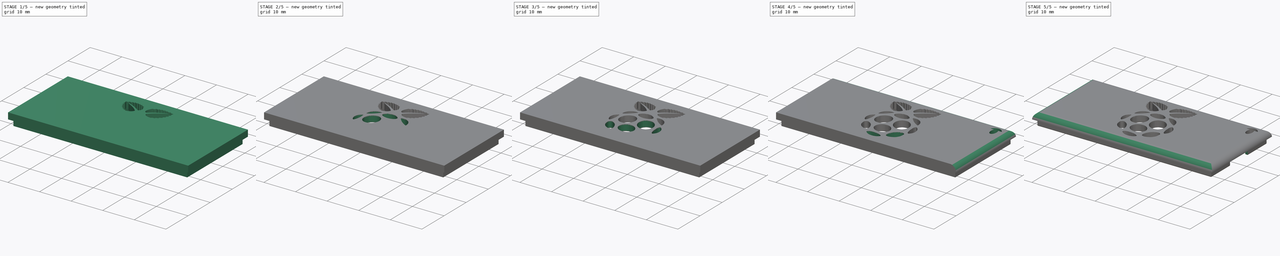
[diagram: build sequence overview — one tinted view per stage of 5, left to right]
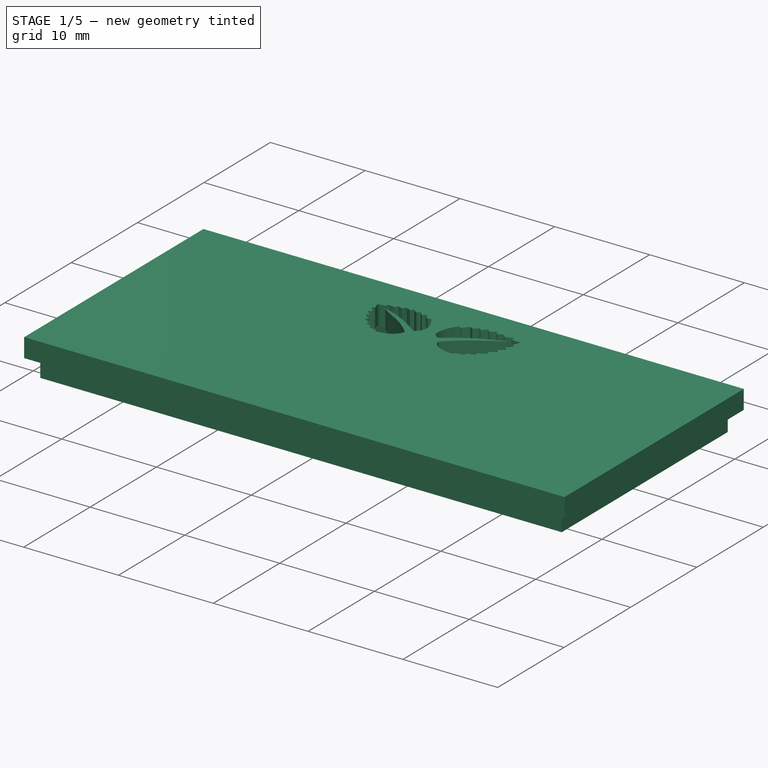
[diagram: stage 1 of 5 — iso view after this stage's code; geometry added in this stage tinted green]
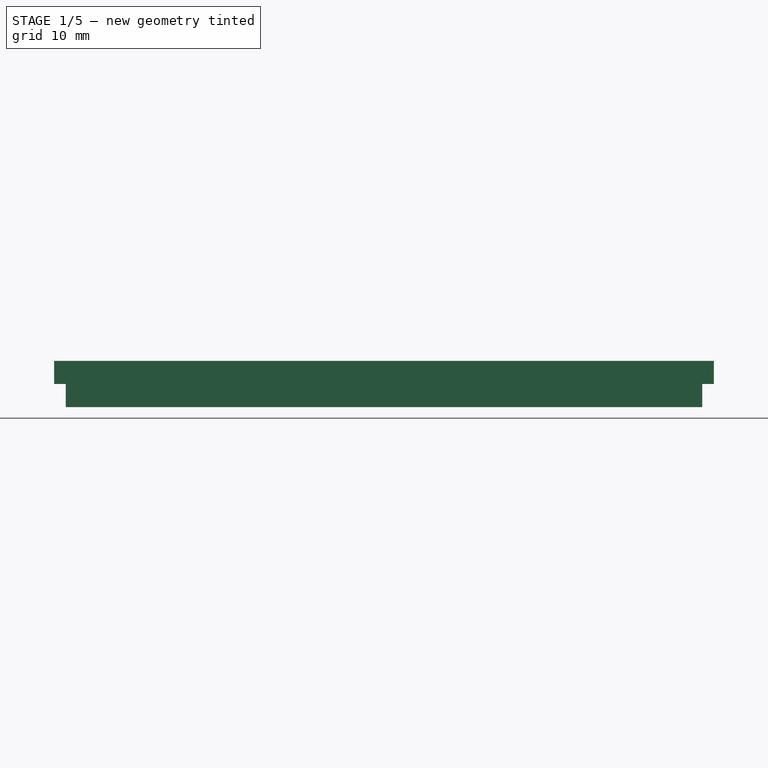
[diagram: stage 1 of 5 — front view after this stage's code; geometry added in this stage tinted green]
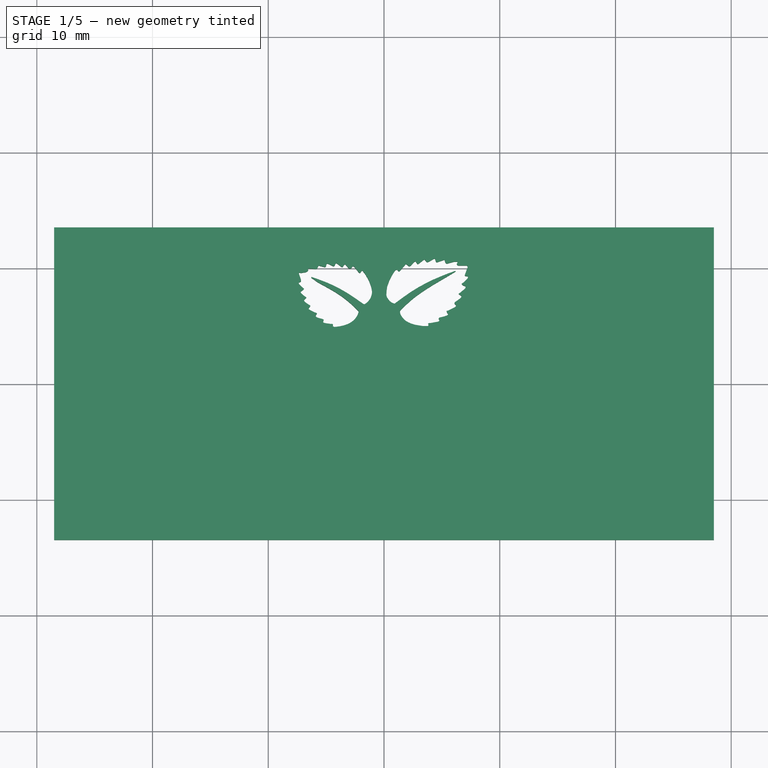
[diagram: stage 1 of 5 — top view after this stage's code; geometry added in this stage tinted green]
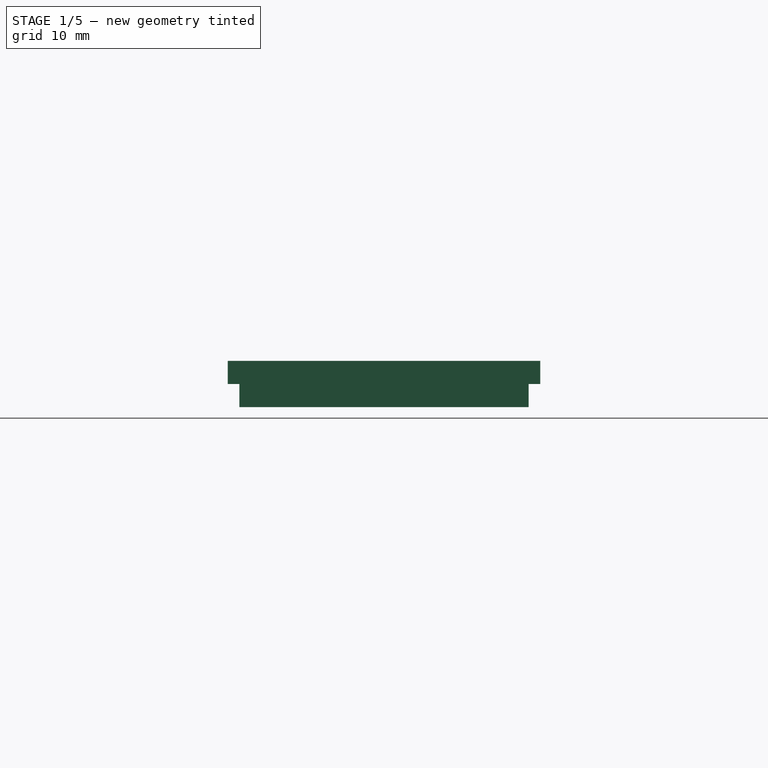
[diagram: stage 1 of 5 — right view after this stage's code; geometry added in this stage tinted green]
FCSTD DOCUMENT  (FreeCAD 0.20R29603 (Git))
Label: picoBracketLid
License: All rights reserved
LicenseURL: http://en.wikipedia.org/wiki/All_rights_reserved
objects: Sketcher::SketchObject×21, PartDesign::Pocket×19, PartDesign::Pad×2, PartDesign::Fillet×1, PartDesign::Body×1
note: 66 computed .brp shape members not serialized (recipe doc carries the construction recipe); baked Part::Feature solids carry a one-line shape summary decoded from their .brp

FEATURE [Sketcher::SketchObject] Sketch
  FullyConstrained = true
  MapMode = 5
  Support = -> [XY_Plane]
  sketch-geometry (4):
    g0: LineSegment StartX=-28.5 StartY=13.5 StartZ=0 EndX=28.5 EndY=13.5 EndZ=0
    g1: LineSegment StartX=28.5 StartY=13.5 StartZ=0 EndX=28.5 EndY=-13.5 EndZ=0
    g2: LineSegment StartX=28.5 StartY=-13.5 StartZ=0 EndX=-28.5 EndY=-13.5 EndZ=0
    g3: LineSegment StartX=-28.5 StartY=-13.5 StartZ=0 EndX=-28.5 EndY=13.5 EndZ=0
  constraints (12):
    c: Coincident(g0,g1)
    c: Coincident(g1,g2)
    c: Coincident(g2,g3)
    c: Coincident(g3,g0)
    c: Horizontal(g0)
    c: Horizontal(g2)
    c: Vertical(g1)
    c: Vertical(g3)
    c: DistanceX(g0,g0) = 57
    c: DistanceY(g1,g1) = 27
    c: DistanceX(g-1,g0) = 28.5
    c: DistanceY(g1,g-1) = 13.5
FEATURE [PartDesign::Pad] Pad
  Direction = (0,0,1)
  Length = 2
  Length2 = 10
  Profile = -> Sketch
  ReferenceAxis = -> Sketch [N_Axis]
  Type = 0
FEATURE [Sketcher::SketchObject] Sketch001
  ExternalGeometry = -> [Pad]
  FullyConstrained = true
  MapMode = 5
  Placement = pos=(0,0,0) rot=(1,0,0;3.14159rad)
  Support = -> [Pad]
  sketch-geometry (8):
    g0: LineSegment StartX=-27.5 StartY=12.5 StartZ=0 EndX=27.5 EndY=12.5 EndZ=0
    g1: LineSegment StartX=27.5 StartY=12.5 StartZ=0 EndX=27.5 EndY=-12.5 EndZ=0
    g2: LineSegment StartX=27.5 StartY=-12.5 StartZ=0 EndX=-27.5 EndY=-12.5 EndZ=0
    g3: LineSegment StartX=-27.5 StartY=-12.5 StartZ=0 EndX=-27.5 EndY=12.5 EndZ=0
    g4: LineSegment StartX=-26.7 StartY=11.7 StartZ=0 EndX=26.7 EndY=11.7 EndZ=0
    g5: LineSegment StartX=26.7 StartY=11.7 StartZ=0 EndX=26.7 EndY=-11.7 EndZ=0
    g6: LineSegment StartX=26.7 StartY=-11.7 StartZ=0 EndX=-26.7 EndY=-11.7 EndZ=0
    g7: LineSegment StartX=-26.7 StartY=-11.7 StartZ=0 EndX=-26.7 EndY=11.7 EndZ=0
  constraints (24):
    c: Coincident(g0,g1)
    c: Coincident(g1,g2)
    c: Coincident(g2,g3)
    c: Coincident(g3,g0)
    c: Horizontal(g0)
    c: Horizontal(g2)
    c: Vertical(g1)
    c: Vertical(g3)
    c: DistanceY(g-5,g2) = 1
    c: DistanceX(g-4,g0) = 1
    c: DistanceY(g0,g-3) = 1
    c: DistanceX(g1,g-5) = 1
    c: Coincident(g4,g5)
    c: Coincident(g5,g6)
    c: Coincident(g6,g7)
    c: Coincident(g7,g4)
    c: Horizontal(g4)
    c: Horizontal(g6)
    c: Vertical(g5)
    c: Vertical(g7)
    c: DistanceX(g0,g4) = 0.8
    c: DistanceY(g4,g0) = 0.8
    c: DistanceX(g5,g1) = 0.8
    c: DistanceY(g2,g6) = 0.8
FEATURE [PartDesign::Pad] Pad001
  BaseFeature = -> Pad
  Direction = (0,0,-1)
  Length = 2
  Length2 = 10
  Profile = -> Sketch001
  ReferenceAxis = -> Sketch001 [N_Axis]
  Type = 0
FEATURE [Sketcher::SketchObject] Sketch002
  FullyConstrained = false
  MapMode = 5
  Placement = pos=(0,0,2) rot=(0,0,1;0rad)
  Support = -> [Pad001]
  sketch-geometry (217):
    g0: LineSegment StartX=-7.34932 StartY=9.59308 StartZ=0 EndX=-7.27454 EndY=9.58697 EndZ=0
    g1: LineSegment StartX=-7.27454 StartY=9.58697 StartZ=0 EndX=-7.23378 EndY=9.57457 EndZ=0
    g2: LineSegment StartX=-7.23378 StartY=9.57457 StartZ=0 EndX=-7.1263 EndY=9.56646 EndZ=0
    g3: LineSegment StartX=-7.1263 StartY=9.56646 StartZ=0 EndX=-7.03758 EndY=9.59333 EndZ=0
    g4: LineSegment StartX=-7.03758 StartY=9.59333 StartZ=0 EndX=-6.99753 EndY=9.59942 EndZ=0
    g5: LineSegment StartX=-6.99753 StartY=9.59942 StartZ=0 EndX=-6.80451 EndY=9.62711 EndZ=0
    g6: LineSegment StartX=-6.80451 StartY=9.62711 StartZ=0 EndX=-6.69697 EndY=9.66416 EndZ=0
    g7: LineSegment StartX=-6.69697 StartY=9.66416 StartZ=0 EndX=-6.68531 EndY=9.66999 EndZ=0
    g8: LineSegment StartX=-6.68531 StartY=9.66999 StartZ=0 EndX=-6.60876 EndY=9.70903 EndZ=0
    g9: LineSegment StartX=-6.60876 StartY=9.70903 StartZ=0 EndX=-6.5405 EndY=9.80418 EndZ=0
    g10: LineSegment StartX=-6.5405 StartY=9.80418 StartZ=0 EndX=-6.59019 EndY=9.91223 EndZ=0
    g11: LineSegment StartX=-6.59019 StartY=9.91223 StartZ=0 EndX=-6.48348 EndY=9.96647 EndZ=0
    g12: LineSegment StartX=-6.48348 StartY=9.96647 StartZ=0 EndX=-5.97391 EndY=9.9078 EndZ=0
    g13: LineSegment StartX=-5.97391 StartY=9.9078 StartZ=0 EndX=-5.83289 EndY=9.9078 EndZ=0
    g14: LineSegment StartX=-5.83289 StartY=9.9078 StartZ=0 EndX=-5.73288 EndY=10.0202 EndZ=0
    g15: LineSegment StartX=-5.73288 StartY=10.0202 StartZ=0 EndX=-5.70651 EndY=10.1265 EndZ=0
    g16: LineSegment StartX=-5.70651 StartY=10.1265 StartZ=0 EndX=-5.62571 EndY=10.2148 EndZ=0
    g17: LineSegment StartX=-5.62571 StartY=10.2148 StartZ=0 EndX=-5.51703 EndY=10.1736 EndZ=0
    g18: LineSegment StartX=-5.51703 StartY=10.1736 StartZ=0 EndX=-5.08901 EndY=10.0596 EndZ=0
    g19: LineSegment StartX=-5.08901 StartY=10.0596 StartZ=0 EndX=-5.02079 EndY=10.1262 EndZ=0
    g20: LineSegment StartX=-5.02079 StartY=10.1262 StartZ=0 EndX=-4.98425 EndY=10.2501 EndZ=0
    g21: LineSegment StartX=-4.98425 StartY=10.2501 StartZ=0 EndX=-4.97186 EndY=10.3402 EndZ=0
    g22: LineSegment StartX=-4.97186 StartY=10.3402 StartZ=0 EndX=-4.87465 EndY=10.3792 EndZ=0
    g23: LineSegment StartX=-4.87465 StartY=10.3792 StartZ=0 EndX=-4.76831 EndY=10.327 EndZ=0
    g24: LineSegment StartX=-4.76831 StartY=10.327 StartZ=0 EndX=-4.53116 EndY=10.2158 EndZ=0
    g25: LineSegment StartX=-4.53116 StartY=10.2158 StartZ=0 EndX=-4.44557 EndY=10.1755 EndZ=0
    g26: LineSegment StartX=-4.44557 StartY=10.1755 StartZ=0 EndX=-4.33845 EndY=10.1414 EndZ=0
    g27: LineSegment StartX=-4.33845 StartY=10.1414 StartZ=0 EndX=-4.23814 EndY=10.2464 EndZ=0
    g28: LineSegment StartX=-4.23814 StartY=10.2464 StartZ=0 EndX=-4.20582 EndY=10.3406 EndZ=0
    g29: LineSegment StartX=-4.20582 StartY=10.3406 StartZ=0 EndX=-4.12347 EndY=10.4215 EndZ=0
    g30: LineSegment StartX=-4.12347 StartY=10.4215 StartZ=0 EndX=-3.95429 EndY=10.3025 EndZ=0
    g31: LineSegment StartX=-3.95429 StartY=10.3025 StartZ=0 EndX=-3.87224 EndY=10.243 EndZ=0
    g32: LineSegment StartX=-3.87224 StartY=10.243 StartZ=0 EndX=-3.71032 EndY=10.1124 EndZ=0
    g33: LineSegment StartX=-3.71032 StartY=10.1124 StartZ=0 EndX=-3.58761 EndY=10.0646 EndZ=0
    g34: LineSegment StartX=-3.58761 StartY=10.0646 StartZ=0 EndX=-3.53064 EndY=10.1414 EndZ=0
    g35: LineSegment StartX=-3.53064 StartY=10.1414 StartZ=0 EndX=-3.47955 EndY=10.233 EndZ=0
    g36: LineSegment StartX=-3.47955 StartY=10.233 StartZ=0 EndX=-3.3727 EndY=10.3263 EndZ=0
    g37: LineSegment StartX=-3.3727 StartY=10.3263 StartZ=0 EndX=-3.06363 EndY=9.99276 EndZ=0
    g38: LineSegment StartX=-3.06363 StartY=9.99276 StartZ=0 EndX=-3.05518 EndY=9.98428 EndZ=0
    g39: LineSegment StartX=-3.05518 StartY=9.98428 StartZ=0 EndX=-2.94496 EndY=9.92483 EndZ=0
    g40: LineSegment StartX=-2.94496 StartY=9.92483 StartZ=0 EndX=-2.83753 EndY=9.98211 EndZ=0
    g41: LineSegment StartX=-2.83753 StartY=9.98211 StartZ=0 EndX=-2.79171 EndY=10.0199 EndZ=0
    g42: LineSegment StartX=-2.79171 StartY=10.0199 StartZ=0 EndX=-2.73092 EndY=10.1271 EndZ=0
    g43: LineSegment StartX=-2.73092 StartY=10.1271 StartZ=0 EndX=-2.61048 EndY=10.1404 EndZ=0
    g44: LineSegment StartX=-2.61048 StartY=10.1404 StartZ=0 EndX=-2.57333 EndY=10.0946 EndZ=0
    g45: LineSegment StartX=-2.57333 StartY=10.0946 StartZ=0 EndX=-2.49252 EndY=9.99802 EndZ=0
    g46: LineSegment StartX=-2.49252 StartY=9.99802 StartZ=0 EndX=-2.38343 EndY=9.87127 EndZ=0
    g47: LineSegment StartX=-2.38343 StartY=9.87127 StartZ=0 EndX=-2.17961 EndY=9.60854 EndZ=0
    g48: LineSegment StartX=-2.17961 StartY=9.60854 StartZ=0 EndX=-2.08636 EndY=9.54773 EndZ=0
    g49: LineSegment StartX=-2.08636 StartY=9.54773 StartZ=0 EndX=-2.04425 EndY=9.59046 EndZ=0
    g50: LineSegment StartX=-2.04425 StartY=9.59046 StartZ=0 EndX=-1.97552 EndY=9.69139 EndZ=0
    g51: LineSegment StartX=-1.97552 StartY=9.69139 StartZ=0 EndX=-1.87164 EndY=9.78503 EndZ=0
    g52: LineSegment StartX=-1.87164 StartY=9.78503 StartZ=0 EndX=-1.73416 EndY=9.60815 EndZ=0
    g53: LineSegment StartX=-1.73416 StartY=9.60815 StartZ=0 EndX=-1.64869 EndY=9.49595 EndZ=0
    g54: LineSegment StartX=-1.64869 StartY=9.49595 StartZ=0 EndX=-1.44308 EndY=9.16391 EndZ=0
    g55: LineSegment StartX=-1.44308 StartY=9.16391 StartZ=0 EndX=-1.3387 EndY=8.95962 EndZ=0
    g56: LineSegment StartX=-1.3387 StartY=8.95962 StartZ=0 EndX=-1.27951 EndY=8.8393 EndZ=0
    g57: LineSegment StartX=-1.27951 StartY=8.8393 StartZ=0 EndX=-1.19589 EndY=8.62896 EndZ=0
    g58: LineSegment StartX=-1.19589 StartY=8.62896 StartZ=0 EndX=-1.13794 EndY=8.4625 EndZ=0
    g59: LineSegment StartX=-1.13794 StartY=8.4625 StartZ=0 EndX=-1.09831 EndY=8.33804 EndZ=0
    g60: LineSegment StartX=-1.09831 StartY=8.33804 StartZ=0 EndX=-1.08715 EndY=8.30298 EndZ=0
    g61: LineSegment StartX=-1.08715 StartY=8.30298 StartZ=0 EndX=-1.08064 EndY=8.26854 EndZ=0
    g62: LineSegment StartX=-1.08064 StartY=8.26854 StartZ=0 EndX=-1.04285 EndY=8.03682 EndZ=0
    g63: LineSegment StartX=-1.04285 StartY=8.03682 StartZ=0 EndX=-1.0379 EndY=7.98233 EndZ=0
    g64: LineSegment StartX=-1.0379 StartY=7.98233 StartZ=0 EndX=-1.0379 EndY=7.92412 EndZ=0
    g65: LineSegment StartX=-1.0379 StartY=7.92412 StartZ=0 EndX=-1.0379 EndY=7.87319 EndZ=0
    g66: LineSegment StartX=-1.0379 StartY=7.87319 StartZ=0 EndX=-1.04503 EndY=7.82334 EndZ=0
    g67: LineSegment StartX=-1.04503 StartY=7.82334 StartZ=0 EndX=-1.05958 EndY=7.72488 EndZ=0
    g68: LineSegment StartX=-1.05958 StartY=7.72488 StartZ=0 EndX=-1.07136 EndY=7.66031 EndZ=0
    g69: LineSegment StartX=-1.07136 StartY=7.66031 StartZ=0 EndX=-1.09675 EndY=7.5826 EndZ=0
    g70: LineSegment StartX=-1.09675 StartY=7.5826 StartZ=0 EndX=-1.12463 EndY=7.5001 EndZ=0
    g71: LineSegment StartX=-1.12463 StartY=7.5001 StartZ=0 EndX=-1.14445 EndY=7.44561 EndZ=0
    g72: LineSegment StartX=-1.14445 StartY=7.44561 StartZ=0 EndX=-1.2036 EndY=7.33677 EndZ=0
    g73: LineSegment StartX=-1.2036 StartY=7.33677 StartZ=0 EndX=-1.22439 EndY=7.30274 EndZ=0
    g74: LineSegment StartX=-1.22439 StartY=7.30274 StartZ=0 EndX=-1.23612 EndY=7.2861 EndZ=0
    g75: LineSegment StartX=-1.23612 StartY=7.2861 StartZ=0 EndX=-1.34394 EndY=7.13206 EndZ=0
    g76: LineSegment StartX=-1.34394 StartY=7.13206 StartZ=0 EndX=-1.40483 EndY=7.07685 EndZ=0
    g77: LineSegment StartX=-1.40483 StartY=7.07685 StartZ=0 EndX=-1.55012 EndY=6.94548 EndZ=0
    g78: LineSegment StartX=-1.55012 StartY=6.94548 StartZ=0 EndX=-1.60987 EndY=6.9054 EndZ=0
    g79: LineSegment StartX=-1.60987 StartY=6.9054 StartZ=0 EndX=-1.65638 EndY=6.86985 EndZ=0
    g80: LineSegment StartX=-1.65638 StartY=6.86985 StartZ=0 EndX=-1.76604 EndY=6.87439 EndZ=0
    g81: LineSegment StartX=-1.76604 StartY=6.87439 StartZ=0 EndX=-1.90709 EndY=6.97233 EndZ=0
    g82: LineSegment StartX=-1.90709 StartY=6.97233 StartZ=0 EndX=-2.12132 EndY=7.12101 EndZ=0
    g83: LineSegment StartX=-2.12132 StartY=7.12101 StartZ=0 EndX=-2.49693 EndY=7.38439 EndZ=0
    g84: LineSegment StartX=-2.49693 StartY=7.38439 StartZ=0 EndX=-2.67171 EndY=7.50591 EndZ=0
    g85: LineSegment StartX=-2.67171 StartY=7.50591 StartZ=0 EndX=-2.9316 EndY=7.67435 EndZ=0
    g86: LineSegment StartX=-2.9316 StartY=7.67435 StartZ=0 EndX=-3.17035 EndY=7.82653 EndZ=0
    g87: LineSegment StartX=-3.17035 StartY=7.82653 StartZ=0 EndX=-3.22593 EndY=7.86057 EndZ=0
    g88: LineSegment StartX=-3.22593 StartY=7.86057 StartZ=0 EndX=-3.46871 EndY=8.00162 EndZ=0
    g89: LineSegment StartX=-3.46871 StartY=8.00162 StartZ=0 EndX=-3.79132 EndY=8.18514 EndZ=0
    g90: LineSegment StartX=-3.79132 StartY=8.18514 StartZ=0 EndX=-3.98992 EndY=8.28906 EndZ=0
    g91: LineSegment StartX=-3.98992 StartY=8.28906 StartZ=0 EndX=-4.1859 EndY=8.39175 EndZ=0
    g92: LineSegment StartX=-4.1859 StartY=8.39175 StartZ=0 EndX=-4.31662 EndY=8.45549 EndZ=0
    g93: LineSegment StartX=-4.31662 StartY=8.45549 StartZ=0 EndX=-4.41546 EndY=8.50168 EndZ=0
    g94: LineSegment StartX=-4.41546 StartY=8.50168 StartZ=0 EndX=-4.59943 EndY=8.58403 EndZ=0
    g95: LineSegment StartX=-4.59943 StartY=8.58403 StartZ=0 EndX=-4.70289 EndY=8.63206 EndZ=0
    g96: LineSegment StartX=-4.70289 StartY=8.63206 StartZ=0 EndX=-4.87396 EndY=8.70747 EndZ=0
    g97: LineSegment StartX=-4.87396 StartY=8.70747 StartZ=0 EndX=-5.0952 EndY=8.79477 EndZ=0
    g98: LineSegment StartX=-5.0952 StartY=8.79477 StartZ=0 EndX=-5.27181 EndY=8.86283 EndZ=0
    g99: LineSegment StartX=-5.27181 StartY=8.86283 StartZ=0 EndX=-5.46164 EndY=8.93858 EndZ=0
    g100: LineSegment StartX=-5.46164 StartY=8.93858 StartZ=0 EndX=-5.55646 EndY=8.97287 EndZ=0
    g101: LineSegment StartX=-5.55646 StartY=8.97287 StartZ=0 EndX=-5.67608 EndY=9.01629 EndZ=0
    g102: LineSegment StartX=-5.67608 StartY=9.01629 StartZ=0 EndX=-5.86591 EndY=9.08326 EndZ=0
    g103: LineSegment StartX=-5.86591 StartY=9.08326 StartZ=0 EndX=-6.12104 EndY=9.17342 EndZ=0
    g104: LineSegment StartX=-6.12104 StartY=9.17342 StartZ=0 EndX=-6.26838 EndY=9.22792 EndZ=0
    g105: LineSegment StartX=-6.26838 StartY=9.22792 StartZ=0 EndX=-6.28778 EndY=9.15079 EndZ=0
    g106: LineSegment StartX=-6.28778 StartY=9.15079 StartZ=0 EndX=-6.14367 EndY=9.06349 EndZ=0
    g107: LineSegment StartX=-6.14367 StartY=9.06349 StartZ=0 EndX=-6.05406 EndY=9.00518 EndZ=0
    g108: LineSegment StartX=-6.05406 StartY=9.00518 StartZ=0 EndX=-6.02958 EndY=8.9867 EndZ=0
    g109: LineSegment StartX=-6.02958 StartY=8.9867 StartZ=0 EndX=-5.92428 EndY=8.90864 EndZ=0
    g110: LineSegment StartX=-5.92428 StartY=8.90864 StartZ=0 EndX=-5.88132 EndY=8.87308 EndZ=0
    g111: LineSegment StartX=-5.88132 StartY=8.87308 StartZ=0 EndX=-5.83929 EndY=8.83982 EndZ=0
    g112: LineSegment StartX=-5.83929 StartY=8.83982 StartZ=0 EndX=-5.77176 EndY=8.79627 EndZ=0
    g113: LineSegment StartX=-5.77176 StartY=8.79627 StartZ=0 EndX=-5.64797 EndY=8.71867 EndZ=0
    g114: LineSegment StartX=-5.64797 StartY=8.71867 StartZ=0 EndX=-5.48852 EndY=8.63261 EndZ=0
    g115: LineSegment StartX=-5.48852 StartY=8.63261 StartZ=0 EndX=-5.19892 EndY=8.47465 EndZ=0
    g116: LineSegment StartX=-5.19892 StartY=8.47465 StartZ=0 EndX=-5.01635 EndY=8.3756 EndZ=0
    g117: LineSegment StartX=-5.01635 StartY=8.3756 StartZ=0 EndX=-4.82698 EndY=8.26983 EndZ=0
    g118: LineSegment StartX=-4.82698 StartY=8.26983 StartZ=0 EndX=-4.601 EndY=8.13983 EndZ=0
    g119: LineSegment StartX=-4.601 StartY=8.13983 StartZ=0 EndX=-4.46605 EndY=8.06073 EndZ=0
    g120: LineSegment StartX=-4.46605 StartY=8.06073 StartZ=0 EndX=-4.30578 EndY=7.96558 EndZ=0
    g121: LineSegment StartX=-4.30578 StartY=7.96558 StartZ=0 EndX=-4.14445 EndY=7.87026 EndZ=0
    g122: LineSegment StartX=-4.14445 StartY=7.87026 StartZ=0 EndX=-3.94207 EndY=7.73663 EndZ=0
    g123: LineSegment StartX=-3.94207 StartY=7.73663 StartZ=0 EndX=-3.9042 EndY=7.71308 EndZ=0
    g124: LineSegment StartX=-3.9042 StartY=7.71308 StartZ=0 EndX=-3.61817 EndY=7.51479 EndZ=0
    g125: LineSegment StartX=-3.61817 StartY=7.51479 StartZ=0 EndX=-3.40848 EndY=7.35683 EndZ=0
    g126: LineSegment StartX=-3.40848 StartY=7.35683 StartZ=0 EndX=-3.31833 EndY=7.28648 EndZ=0
    g127: LineSegment StartX=-3.31833 StartY=7.28648 StartZ=0 EndX=-3.11872 EndY=7.12838 EndZ=0
    g128: LineSegment StartX=-3.11872 StartY=7.12838 StartZ=0 EndX=-2.85535 EndY=6.90049 EndZ=0
    g129: LineSegment StartX=-2.85535 StartY=6.90049 StartZ=0 EndX=-2.69868 EndY=6.75113 EndZ=0
    g130: LineSegment StartX=-2.69868 StartY=6.75113 StartZ=0 EndX=-2.44826 EndY=6.51312 EndZ=0
    g131: LineSegment StartX=-2.44826 StartY=6.51312 StartZ=0 EndX=-2.34942 EndY=6.42028 EndZ=0
    g132: LineSegment StartX=-2.34942 StartY=6.42028 StartZ=0 EndX=-2.19597 EndY=6.26673 EndZ=0
    g133: LineSegment StartX=-2.19597 StartY=6.26673 StartZ=0 EndX=-2.20012 EndY=6.19237 EndZ=0
    g134: LineSegment StartX=-2.20012 StartY=6.19237 StartZ=0 EndX=-2.20336 EndY=6.16004 EndZ=0
    g135: LineSegment StartX=-2.20336 StartY=6.16004 StartZ=0 EndX=-2.238 EndY=6.05288 EndZ=0
    g136: LineSegment StartX=-2.238 StartY=6.05288 StartZ=0 EndX=-2.26899 EndY=5.982 EndZ=0
    g137: LineSegment StartX=-2.26899 StartY=5.982 StartZ=0 EndX=-2.29716 EndY=5.91503 EndZ=0
    g138: LineSegment StartX=-2.29716 StartY=5.91503 StartZ=0 EndX=-2.35582 EndY=5.81019 EndZ=0
    g139: LineSegment StartX=-2.35582 StartY=5.81019 StartZ=0 EndX=-2.40669 EndY=5.72686 EndZ=0
    g140: LineSegment StartX=-2.40669 StartY=5.72686 StartZ=0 EndX=-2.46627 EndY=5.64742 EndZ=0
    g141: LineSegment StartX=-2.46627 StartY=5.64742 StartZ=0 EndX=-2.55172 EndY=5.54857 EndZ=0
    g142: LineSegment StartX=-2.55172 StartY=5.54857 StartZ=0 EndX=-2.59664 EndY=5.50168 EndZ=0
    g143: LineSegment StartX=-2.59664 StartY=5.50168 StartZ=0 EndX=-2.71442 EndY=5.39729 EndZ=0
    g144: LineSegment StartX=-2.71442 StartY=5.39729 StartZ=0 EndX=-2.84151 EndY=5.30523 EndZ=0
    g145: LineSegment StartX=-2.84151 StartY=5.30523 StartZ=0 EndX=-2.87522 EndY=5.28768 EndZ=0
    g146: LineSegment StartX=-2.87522 StartY=5.28768 StartZ=0 EndX=-3.04334 EndY=5.19115 EndZ=0
    g147: LineSegment StartX=-3.04334 StartY=5.19115 StartZ=0 EndX=-3.0762 EndY=5.17718 EndZ=0
    g148: LineSegment StartX=-3.0762 StartY=5.17718 StartZ=0 EndX=-3.28035 EndY=5.09266 EndZ=0
    g149: LineSegment StartX=-3.28035 StartY=5.09266 StartZ=0 EndX=-3.47998 EndY=5.03022 EndZ=0
    g150: LineSegment StartX=-3.47998 StartY=5.03022 StartZ=0 EndX=-3.63378 EndY=4.99419 EndZ=0
    g151: LineSegment StartX=-3.63378 StartY=4.99419 StartZ=0 EndX=-3.83249 EndY=4.95071 EndZ=0
    g152: LineSegment StartX=-3.83249 StartY=4.95071 StartZ=0 EndX=-3.86205 EndY=4.94609 EndZ=0
    g153: LineSegment StartX=-3.86205 StartY=4.94609 StartZ=0 EndX=-4.23076 EndY=4.9017 EndZ=0
    g154: LineSegment StartX=-4.23076 StartY=4.9017 StartZ=0 EndX=-4.3393 EndY=4.91278 EndZ=0
    g155: LineSegment StartX=-4.3393 StartY=4.91278 StartZ=0 EndX=-4.4363 EndY=4.97975 EndZ=0
    g156: LineSegment StartX=-4.4363 StartY=4.97975 StartZ=0 EndX=-4.40812 EndY=5.08599 EndZ=0
    g157: LineSegment StartX=-4.40812 StartY=5.08599 StartZ=0 EndX=-4.44561 EndY=5.15721 EndZ=0
    g158: LineSegment StartX=-4.44561 StartY=5.15721 StartZ=0 EndX=-4.51304 EndY=5.15721 EndZ=0
    g159: LineSegment StartX=-4.51304 StartY=5.15721 StartZ=0 EndX=-4.58279 EndY=5.16322 EndZ=0
    g160: LineSegment StartX=-4.58279 StartY=5.16322 StartZ=0 EndX=-4.64837 EndY=5.16645 EndZ=0
    g161: LineSegment StartX=-4.64837 StartY=5.16645 StartZ=0 EndX=-4.83838 EndY=5.19334 EndZ=0
    g162: LineSegment StartX=-4.83838 StartY=5.19334 StartZ=0 EndX=-5.03837 EndY=5.22058 EndZ=0
    g163: LineSegment StartX=-5.03837 StartY=5.22058 StartZ=0 EndX=-5.08838 EndY=5.23036 EndZ=0
    g164: LineSegment StartX=-5.08838 StartY=5.23036 StartZ=0 EndX=-5.13918 EndY=5.24698 EndZ=0
    g165: LineSegment StartX=-5.13918 StartY=5.24698 StartZ=0 EndX=-5.19646 EndY=5.26407 EndZ=0
    g166: LineSegment StartX=-5.19646 StartY=5.26407 StartZ=0 EndX=-5.24495 EndY=5.30195 EndZ=0
    g167: LineSegment StartX=-5.24495 StartY=5.30195 StartZ=0 EndX=-5.24495 EndY=5.40864 EndZ=0
    g168: LineSegment StartX=-5.24495 StartY=5.40864 StartZ=0 EndX=-5.20664 EndY=5.51459 EndZ=0
    g169: LineSegment StartX=-5.20664 StartY=5.51459 StartZ=0 EndX=-5.30363 EndY=5.58941 EndZ=0
    g170: LineSegment StartX=-5.30363 StartY=5.58941 StartZ=0 EndX=-5.43619 EndY=5.61528 EndZ=0
    g171: LineSegment StartX=-5.43619 StartY=5.61528 StartZ=0 EndX=-5.50887 EndY=5.6348 EndZ=0
    g172: LineSegment StartX=-5.50887 StartY=5.6348 StartZ=0 EndX=-5.69315 EndY=5.68976 EndZ=0
    g173: LineSegment StartX=-5.69315 StartY=5.68976 StartZ=0 EndX=-5.76336 EndY=5.71332 EndZ=0
    g174: LineSegment StartX=-5.76336 StartY=5.71332 StartZ=0 EndX=-5.82433 EndY=5.73872 EndZ=0
    g175: LineSegment StartX=-5.82433 StartY=5.73872 StartZ=0 EndX=-5.91732 EndY=5.83686 EndZ=0
    g176: LineSegment StartX=-5.91732 StartY=5.83686 StartZ=0 EndX=-5.85404 EndY=5.96618 EndZ=0
    g177: LineSegment StartX=-5.85404 StartY=5.96618 StartZ=0 EndX=-5.7903 EndY=6.05255 EndZ=0
    g178: LineSegment StartX=-5.7903 StartY=6.05255 StartZ=0 EndX=-5.83926 EndY=6.11722 EndZ=0
    g179: LineSegment StartX=-5.83926 StartY=6.11722 StartZ=0 EndX=-5.9627 EndY=6.15296 EndZ=0
    g180: LineSegment StartX=-5.9627 StartY=6.15296 StartZ=0 EndX=-6.05323 EndY=6.1936 EndZ=0
    g181: LineSegment StartX=-6.05323 StartY=6.1936 StartZ=0 EndX=-6.16038 EndY=6.23794 EndZ=0
    g182: LineSegment StartX=-6.16038 StartY=6.23794 StartZ=0 EndX=-6.48288 EndY=6.41506 EndZ=0
    g183: LineSegment StartX=-6.48288 StartY=6.41506 StartZ=0 EndX=-6.52029 EndY=6.48111 EndZ=0
    g184: LineSegment StartX=-6.52029 StartY=6.48111 StartZ=0 EndX=-6.49351 EndY=6.52932 EndZ=0
    g185: LineSegment StartX=-6.49351 StartY=6.52932 StartZ=0 EndX=-6.46718 EndY=6.56165 EndZ=0
    g186: LineSegment StartX=-6.46718 StartY=6.56165 StartZ=0 EndX=-6.37342 EndY=6.6919 EndZ=0
    g187: LineSegment StartX=-6.37342 StartY=6.6919 StartZ=0 EndX=-6.37622 EndY=6.76502 EndZ=0
    g188: LineSegment StartX=-6.37622 StartY=6.76502 StartZ=0 EndX=-6.46814 EndY=6.81121 EndZ=0
    g189: LineSegment StartX=-6.46814 StartY=6.81121 StartZ=0 EndX=-6.60762 EndY=6.89943 EndZ=0
    g190: LineSegment StartX=-6.60762 StartY=6.89943 StartZ=0 EndX=-6.66453 EndY=6.93573 EndZ=0
    g191: LineSegment StartX=-6.66453 StartY=6.93573 StartZ=0 EndX=-6.72365 EndY=6.98053 EndZ=0
    g192: LineSegment StartX=-6.72365 StartY=6.98053 StartZ=0 EndX=-6.79016 EndY=7.02995 EndZ=0
    g193: LineSegment StartX=-6.79016 StartY=7.02995 StartZ=0 EndX=-6.82388 EndY=7.06228 EndZ=0
    g194: LineSegment StartX=-6.82388 StartY=7.06228 StartZ=0 EndX=-6.88762 EndY=7.1251 EndZ=0
    g195: LineSegment StartX=-6.88762 StartY=7.1251 StartZ=0 EndX=-6.90794 EndY=7.23179 EndZ=0
    g196: LineSegment StartX=-6.90794 StartY=7.23179 StartZ=0 EndX=-6.80307 EndY=7.33639 EndZ=0
    g197: LineSegment StartX=-6.80307 StartY=7.33639 StartZ=0 EndX=-6.70562 EndY=7.44678 EndZ=0
    g198: LineSegment StartX=-6.70562 StartY=7.44678 StartZ=0 EndX=-6.83679 EndY=7.54054 EndZ=0
    g199: LineSegment StartX=-6.83679 StartY=7.54054 StartZ=0 EndX=-6.90151 EndY=7.58553 EndZ=0
    g200: LineSegment StartX=-6.90151 StartY=7.58553 StartZ=0 EndX=-6.95602 EndY=7.63033 EndZ=0
    g201: LineSegment StartX=-6.95602 StartY=7.63033 StartZ=0 EndX=-7.01929 EndY=7.69176 EndZ=0
    g202: LineSegment StartX=-7.01929 StartY=7.69176 StartZ=0 EndX=-7.11729 EndY=7.77884 EndZ=0
    g203: LineSegment StartX=-7.11729 StartY=7.77884 StartZ=0 EndX=-7.13854 EndY=7.80517 EndZ=0
    g204: LineSegment StartX=-7.13854 StartY=7.80517 StartZ=0 EndX=-7.19581 EndY=7.87399 EndZ=0
    g205: LineSegment StartX=-7.19581 StartY=7.87399 StartZ=0 EndX=-7.19581 EndY=7.98253 EndZ=0
    g206: LineSegment StartX=-7.19581 StartY=7.98253 StartZ=0 EndX=-7.12653 EndY=8.00978 EndZ=0
    g207: LineSegment StartX=-7.12653 StartY=8.00978 StartZ=0 EndX=-7.01148 EndY=8.08067 EndZ=0
    g208: LineSegment StartX=-7.01148 StartY=8.08067 StartZ=0 EndX=-6.90894 EndY=8.2003 EndZ=0
    g209: LineSegment StartX=-6.90894 StartY=8.2003 StartZ=0 EndX=-7.18152 EndY=8.43978 EndZ=0
    g210: LineSegment StartX=-7.18152 StartY=8.43978 StartZ=0 EndX=-7.35062 EndY=8.61363 EndZ=0
    g211: LineSegment StartX=-7.35062 StartY=8.61363 StartZ=0 EndX=-7.35662 EndY=8.74803 EndZ=0
    g212: LineSegment StartX=-7.35662 StartY=8.74803 StartZ=0 EndX=-7.23424 EndY=8.79356 EndZ=0
    g213: LineSegment StartX=-7.23424 StartY=8.79356 StartZ=0 EndX=-7.1667 EndY=8.83717 EndZ=0
    g214: LineSegment StartX=-7.1667 StartY=8.83717 StartZ=0 EndX=-7.1667 EndY=8.9577 EndZ=0
    g215: LineSegment StartX=-7.1667 StartY=8.9577 StartZ=0 EndX=-7.34373 EndY=9.47246 EndZ=0
    g216: LineSegment StartX=-7.34373 StartY=9.47246 StartZ=0 EndX=-7.34932 EndY=9.59308 EndZ=0
  constraints (224):
    c: Coincident(g0,g1)
    c: Coincident(g1,g2)
    c: Coincident(g2,g3)
    c: Coincident(g3,g4)
    c: Coincident(g4,g5)
    c: Coincident(g5,g6)
    c: Coincident(g6,g7)
    c: Coincident(g7,g8)
    c: Coincident(g8,g9)
    c: Coincident(g9,g10)
    c: Coincident(g10,g11)
    c: Coincident(g11,g12)
    c: Coincident(g12,g13)
    c: Horizontal(g13)
    c: Coincident(g13,g14)
    c: Coincident(g14,g15)
    c: Coincident(g15,g16)
    c: Coincident(g16,g17)
    c: Coincident(g17,g18)
    c: Coincident(g18,g19)
    c: Coincident(g19,g20)
    c: Coincident(g20,g21)
    c: Coincident(g21,g22)
    c: Coincident(g22,g23)
    c: Coincident(g23,g24)
    c: Coincident(g24,g25)
    c: Coincident(g25,g26)
    c: Coincident(g26,g27)
    c: Coincident(g27,g28)
    c: Coincident(g28,g29)
    c: Coincident(g29,g30)
    c: Coincident(g30,g31)
    c: Coincident(g31,g32)
    c: Coincident(g32,g33)
    c: Coincident(g33,g34)
    c: Coincident(g34,g35)
    c: Coincident(g35,g36)
    c: Coincident(g36,g37)
    c: Coincident(g37,g38)
    c: Coincident(g38,g39)
    c: Coincident(g39,g40)
    c: Coincident(g40,g41)
    c: Coincident(g41,g42)
    c: Coincident(g42,g43)
    c: Coincident(g43,g44)
    c: Coincident(g44,g45)
    c: Coincident(g45,g46)
    c: Coincident(g46,g47)
    c: Coincident(g47,g48)
    c: Coincident(g48,g49)
    c: Coincident(g49,g50)
    c: Coincident(g50,g51)
    c: Coincident(g51,g52)
    c: Coincident(g52,g53)
    c: Coincident(g53,g54)
    c: Coincident(g54,g55)
    c: Coincident(g55,g56)
    c: Coincident(g56,g57)
    c: Coincident(g57,g58)
    c: Coincident(g58,g59)
    c: Coincident(g59,g60)
    c: Coincident(g60,g61)
    c: Coincident(g61,g62)
    c: Coincident(g62,g63)
    c: Coincident(g63,g64)
    c: Vertical(g64)
    c: Coincident(g64,g65)
    c: Vertical(g65)
    c: Coincident(g65,g66)
    c: Coincident(g66,g67)
    c: Coincident(g67,g68)
    c: Coincident(g68,g69)
    c: Coincident(g69,g70)
    c: Coincident(g70,g71)
    c: Coincident(g71,g72)
    c: Coincident(g72,g73)
    c: Coincident(g73,g74)
    c: Coincident(g74,g75)
    c: Coincident(g75,g76)
    c: Coincident(g76,g77)
    c: Coincident(g77,g78)
    c: Coincident(g78,g79)
    c: Coincident(g79,g80)
    c: Coincident(g80,g81)
    c: Coincident(g81,g82)
    c: Coincident(g82,g83)
    c: Coincident(g83,g84)
    c: Coincident(g84,g85)
    c: Coincident(g85,g86)
    c: Coincident(g86,g87)
    c: Coincident(g87,g88)
    c: Coincident(g88,g89)
    c: Coincident(g89,g90)
    c: Coincident(g90,g91)
    c: Coincident(g91,g92)
    c: Coincident(g92,g93)
    c: Coincident(g93,g94)
    c: Coincident(g94,g95)
    c: Coincident(g95,g96)
    c: Coincident(g96,g97)
    c: Coincident(g97,g98)
    c: Coincident(g98,g99)
    c: Coincident(g99,g100)
    c: Coincident(g100,g101)
    c: Coincident(g101,g102)
    c: Coincident(g102,g103)
    c: Coincident(g103,g104)
    c: Coincident(g104,g105)
    c: Coincident(g105,g106)
    c: Coincident(g106,g107)
    c: Coincident(g107,g108)
    c: Coincident(g108,g109)
    c: Coincident(g109,g110)
    c: Coincident(g110,g111)
    c: Coincident(g111,g112)
    c: Coincident(g112,g113)
    c: Coincident(g113,g114)
    c: Coincident(g114,g115)
    c: Coincident(g115,g116)
    c: Coincident(g116,g117)
    c: Coincident(g117,g118)
    c: Coincident(g118,g119)
    c: Coincident(g119,g120)
    c: Coincident(g120,g121)
    c: Coincident(g121,g122)
    c: Coincident(g122,g123)
    c: Coincident(g123,g124)
    c: Coincident(g124,g125)
    c: Coincident(g125,g126)
    c: Coincident(g126,g127)
    c: Coincident(g127,g128)
    c: Coincident(g128,g129)
    c: Coincident(g129,g130)
    c: Coincident(g130,g131)
    c: Coincident(g131,g132)
    c: Coincident(g132,g133)
    c: Coincident(g133,g134)
    c: Coincident(g134,g135)
    c: Coincident(g135,g136)
    c: Coincident(g136,g137)
    c: Coincident(g137,g138)
    c: Coincident(g138,g139)
    c: Coincident(g139,g140)
    c: Coincident(g140,g141)
    c: Coincident(g141,g142)
    c: Coincident(g142,g143)
    c: Coincident(g143,g144)
    c: Coincident(g144,g145)
    c: Coincident(g145,g146)
    c: Coincident(g146,g147)
    c: Coincident(g147,g148)
    c: Coincident(g148,g149)
    c: Coincident(g149,g150)
    c: Coincident(g150,g151)
    c: Coincident(g151,g152)
    c: Coincident(g152,g153)
    c: Coincident(g153,g154)
    c: Coincident(g154,g155)
    c: Coincident(g155,g156)
    c: Coincident(g156,g157)
    c: Coincident(g157,g158)
    c: Horizontal(g158)
    c: Coincident(g158,g159)
    c: Coincident(g159,g160)
    c: Coincident(g160,g161)
    c: Coincident(g161,g162)
    c: Coincident(g162,g163)
    c: Coincident(g163,g164)
    c: Coincident(g164,g165)
    c: Coincident(g165,g166)
    c: Coincident(g166,g167)
    c: Vertical(g167)
    c: Coincident(g167,g168)
    c: Coincident(g168,g169)
    c: Coincident(g169,g170)
    c: Coincident(g170,g171)
    c: Coincident(g171,g172)
    c: Coincident(g172,g173)
    c: Coincident(g173,g174)
    c: Coincident(g174,g175)
    c: Coincident(g175,g176)
    c: Coincident(g176,g177)
    c: Coincident(g177,g178)
    c: Coincident(g178,g179)
    c: Coincident(g179,g180)
    c: Coincident(g180,g181)
    c: Coincident(g181,g182)
    c: Coincident(g182,g183)
    c: Coincident(g183,g184)
    c: Coincident(g184,g185)
    c: Coincident(g185,g186)
    c: Coincident(g186,g187)
    c: Coincident(g187,g188)
    c: Coincident(g188,g189)
    c: Coincident(g189,g190)
    c: Coincident(g190,g191)
    c: Coincident(g191,g192)
    c: Coincident(g192,g193)
    c: Coincident(g193,g194)
    c: Coincident(g194,g195)
    c: Coincident(g195,g196)
    c: Coincident(g196,g197)
    c: Coincident(g197,g198)
    c: Coincident(g198,g199)
    c: Coincident(g199,g200)
    c: Coincident(g200,g201)
    c: Coincident(g201,g202)
    c: Coincident(g202,g203)
    c: Coincident(g203,g204)
    c: Coincident(g204,g205)
    c: Vertical(g205)
    c: Coincident(g205,g206)
    c: Coincident(g206,g207)
    c: Coincident(g207,g208)
    c: Coincident(g208,g209)
    c: Coincident(g209,g210)
    c: Coincident(g210,g211)
    c: Coincident(g211,g212)
    c: Coincident(g212,g213)
    c: Coincident(g213,g214)
    c: Vertical(g214)
    c: Coincident(g214,g215)
    c: Coincident(g215,g216)
    c: Coincident(g216,g0)
FEATURE [PartDesign::Pocket] Pocket
  BaseFeature = -> Pad001
  Direction = (0,0,-1)
  Length = 2
  Length2 = 5
  Profile = -> Sketch002
  ReferenceAxis = -> Sketch002 [N_Axis]
  Type = 0
FEATURE [Sketcher::SketchObject] Sketch003
  FullyConstrained = false
  MapMode = 5
  Placement = pos=(0,0,2) rot=(0,0,1;0rad)
  Support = -> [Pocket]
  sketch-geometry (130):
    g0: LineSegment StartX=1.13416 StartY=9.86505 StartZ=0 EndX=1.23365 EndY=9.71921 EndZ=0
    g1: LineSegment StartX=1.23365 StartY=9.71921 StartZ=0 EndX=1.34575 EndY=9.71006 EndZ=0
    g2: LineSegment StartX=1.34575 StartY=9.71006 StartZ=0 EndX=1.87649 EndY=10.3323 EndZ=0
    g3: LineSegment StartX=1.87649 StartY=10.3323 StartZ=0 EndX=1.98859 EndY=10.282 EndZ=0
    g4: LineSegment StartX=1.98859 StartY=10.282 StartZ=0 EndX=2.09382 EndY=10.1928 EndZ=0
    g5: LineSegment StartX=2.09382 StartY=10.1928 StartZ=0 EndX=2.20363 EndY=10.1379 EndZ=0
    g6: LineSegment StartX=2.20363 StartY=10.1379 StartZ=0 EndX=2.32717 EndY=10.2111 EndZ=0
    g7: LineSegment StartX=2.32717 StartY=10.2111 StartZ=0 EndX=2.62914 EndY=10.5428 EndZ=0
    g8: LineSegment StartX=2.62914 StartY=10.5428 StartZ=0 EndX=2.74124 EndY=10.5542 EndZ=0
    g9: LineSegment StartX=2.74124 StartY=10.5542 StartZ=0 EndX=2.80072 EndY=10.4467 EndZ=0
    g10: LineSegment StartX=2.80072 StartY=10.4467 StartZ=0 EndX=2.89451 EndY=10.3437 EndZ=0
    g11: LineSegment StartX=2.89451 StartY=10.3437 StartZ=0 EndX=2.95399 EndY=10.3392 EndZ=0
    g12: LineSegment StartX=2.95399 StartY=10.3392 StartZ=0 EndX=3.48779 EndY=10.745 EndZ=0
    g13: LineSegment StartX=3.48779 StartY=10.745 StartZ=0 EndX=3.56786 EndY=10.6672 EndZ=0
    g14: LineSegment StartX=3.56786 StartY=10.6672 StartZ=0 EndX=3.59531 EndY=10.6101 EndZ=0
    g15: LineSegment StartX=3.59531 StartY=10.6101 StartZ=0 EndX=3.70283 EndY=10.4957 EndZ=0
    g16: LineSegment StartX=3.70283 StartY=10.4957 StartZ=0 EndX=3.81264 EndY=10.5163 EndZ=0
    g17: LineSegment StartX=3.81264 StartY=10.5163 StartZ=0 EndX=4.34567 EndY=10.8022 EndZ=0
    g18: LineSegment StartX=4.34567 StartY=10.8022 StartZ=0 EndX=4.41659 EndY=10.7702 EndZ=0
    g19: LineSegment StartX=4.41659 StartY=10.7702 StartZ=0 EndX=4.44633 EndY=10.6535 EndZ=0
    g20: LineSegment StartX=4.44633 StartY=10.6535 StartZ=0 EndX=4.48064 EndY=10.5529 EndZ=0
    g21: LineSegment StartX=4.48064 StartY=10.5529 StartZ=0 EndX=4.563 EndY=10.4797 EndZ=0
    g22: LineSegment StartX=4.563 StartY=10.4797 StartZ=0 EndX=5.20813 EndY=10.7061 EndZ=0
    g23: LineSegment StartX=5.20813 StartY=10.7061 StartZ=0 EndX=5.24473 EndY=10.665 EndZ=0
    g24: LineSegment StartX=5.24473 StartY=10.665 StartZ=0 EndX=5.2699 EndY=10.5574 EndZ=0
    g25: LineSegment StartX=5.2699 StartY=10.5574 StartZ=0 EndX=5.31336 EndY=10.4522 EndZ=0
    g26: LineSegment StartX=5.31336 StartY=10.4522 StartZ=0 EndX=5.4186 EndY=10.3676 EndZ=0
    g27: LineSegment StartX=5.4186 StartY=10.3676 StartZ=0 EndX=6.06457 EndY=10.5439 EndZ=0
    g28: LineSegment StartX=6.06457 StartY=10.5439 StartZ=0 EndX=6.34367 EndY=10.5439 EndZ=0
    g29: LineSegment StartX=6.34367 StartY=10.5439 StartZ=0 EndX=6.33452 EndY=10.4501 EndZ=0
    g30: LineSegment StartX=6.33452 StartY=10.4501 StartZ=0 EndX=6.28876 EndY=10.3403 EndZ=0
    g31: LineSegment StartX=6.28876 StartY=10.3403 StartZ=0 EndX=6.3574 EndY=10.2282 EndZ=0
    g32: LineSegment StartX=6.3574 StartY=10.2282 StartZ=0 EndX=6.49237 EndY=10.2076 EndZ=0
    g33: LineSegment StartX=6.49237 StartY=10.2076 StartZ=0 EndX=7.13978 EndY=10.2076 EndZ=0
    g34: LineSegment StartX=7.13978 StartY=10.2076 StartZ=0 EndX=7.23815 EndY=10.1276 EndZ=0
    g35: LineSegment StartX=7.23815 StartY=10.1276 StartZ=0 EndX=7.21528 EndY=10.0246 EndZ=0
    g36: LineSegment StartX=7.21528 StartY=10.0246 StartZ=0 EndX=6.97729 EndY=9.37637 EndZ=0
    g37: LineSegment StartX=6.97729 StartY=9.37637 StartZ=0 EndX=7.02991 EndY=9.30316 EndZ=0
    g38: LineSegment StartX=7.02991 StartY=9.30316 StartZ=0 EndX=7.24723 EndY=9.27113 EndZ=0
    g39: LineSegment StartX=7.24723 StartY=9.27113 StartZ=0 EndX=7.24723 EndY=9.14989 EndZ=0
    g40: LineSegment StartX=7.24723 StartY=9.14989 StartZ=0 EndX=7.20377 EndY=9.07897 EndZ=0
    g41: LineSegment StartX=7.20377 StartY=9.07897 StartZ=0 EndX=6.97042 EndY=8.83107 EndZ=0
    g42: LineSegment StartX=6.97042 StartY=8.83107 StartZ=0 EndX=6.70963 EndY=8.62289 EndZ=0
    g43: LineSegment StartX=6.70963 StartY=8.62289 StartZ=0 EndX=6.80571 EndY=8.50851 EndZ=0
    g44: LineSegment StartX=6.80571 StartY=8.50851 StartZ=0 EndX=6.92238 EndY=8.45818 EndZ=0
    g45: LineSegment StartX=6.92238 StartY=8.45818 StartZ=0 EndX=7.03906 EndY=8.41929 EndZ=0
    g46: LineSegment StartX=7.03906 StartY=8.41929 StartZ=0 EndX=7.05507 EndY=8.30261 EndZ=0
    g47: LineSegment StartX=7.05507 StartY=8.30261 StartZ=0 EndX=7.02533 EndY=8.25 EndZ=0
    g48: LineSegment StartX=7.02533 StartY=8.25 StartZ=0 EndX=6.97729 EndY=8.19738 EndZ=0
    g49: LineSegment StartX=6.97729 StartY=8.19738 StartZ=0 EndX=6.89493 EndY=8.1196 EndZ=0
    g50: LineSegment StartX=6.89493 StartY=8.1196 StartZ=0 EndX=6.72107 EndY=7.97319 EndZ=0
    g51: LineSegment StartX=6.72107 StartY=7.97319 StartZ=0 EndX=6.59982 EndY=7.87482 EndZ=0
    g52: LineSegment StartX=6.59982 StartY=7.87482 StartZ=0 EndX=6.44655 EndY=7.76501 EndZ=0
    g53: LineSegment StartX=6.44655 StartY=7.76501 StartZ=0 EndX=6.49001 EndY=7.72154 EndZ=0
    g54: LineSegment StartX=6.49001 StartY=7.72154 StartZ=0 EndX=6.58394 EndY=7.65437 EndZ=0
    g55: LineSegment StartX=6.58394 StartY=7.65437 StartZ=0 EndX=6.7029 EndY=7.55142 EndZ=0
    g56: LineSegment StartX=6.7029 StartY=7.55142 StartZ=0 EndX=6.67087 EndY=7.44848 EndZ=0
    g57: LineSegment StartX=6.67087 StartY=7.44848 StartZ=0 EndX=6.58852 EndY=7.36841 EndZ=0
    g58: LineSegment StartX=6.58852 StartY=7.36841 StartZ=0 EndX=6.10353 EndY=7.02297 EndZ=0
    g59: LineSegment StartX=6.10353 StartY=7.02297 StartZ=0 EndX=6.0898 EndY=6.91316 EndZ=0
    g60: LineSegment StartX=6.0898 StartY=6.91316 StartZ=0 EndX=6.20876 EndY=6.80564 EndZ=0
    g61: LineSegment StartX=6.20876 StartY=6.80564 StartZ=0 EndX=6.22249 EndY=6.7004 EndZ=0
    g62: LineSegment StartX=6.22249 StartY=6.7004 StartZ=0 EndX=6.16987 EndY=6.63406 EndZ=0
    g63: LineSegment StartX=6.16987 StartY=6.63406 StartZ=0 EndX=5.97491 EndY=6.52774 EndZ=0
    g64: LineSegment StartX=5.97491 StartY=6.52774 StartZ=0 EndX=5.52881 EndY=6.3127 EndZ=0
    g65: LineSegment StartX=5.52881 StartY=6.3127 StartZ=0 EndX=5.40527 EndY=6.2761 EndZ=0
    g66: LineSegment StartX=5.40527 StartY=6.2761 StartZ=0 EndX=5.43044 EndY=6.16629 EndZ=0
    g67: LineSegment StartX=5.43044 StartY=6.16629 StartZ=0 EndX=5.52881 EndY=6.05419 EndZ=0
    g68: LineSegment StartX=5.52881 StartY=6.05419 StartZ=0 EndX=5.52423 EndY=5.94896 EndZ=0
    g69: LineSegment StartX=5.52423 StartY=5.94896 StartZ=0 EndX=5.41671 EndY=5.88262 EndZ=0
    g70: LineSegment StartX=5.41671 StartY=5.88262 StartZ=0 EndX=5.24742 EndY=5.82085 EndZ=0
    g71: LineSegment StartX=5.24742 StartY=5.82085 StartZ=0 EndX=5.10101 EndY=5.78196 EndZ=0
    g72: LineSegment StartX=5.10101 StartY=5.78196 StartZ=0 EndX=4.77845 EndY=5.70646 EndZ=0
    g73: LineSegment StartX=4.77845 StartY=5.70646 StartZ=0 EndX=4.71897 EndY=5.61953 EndZ=0
    g74: LineSegment StartX=4.71897 StartY=5.61953 StartZ=0 EndX=4.77616 EndY=5.51659 EndZ=0
    g75: LineSegment StartX=4.77616 StartY=5.51659 StartZ=0 EndX=4.7806 EndY=5.40601 EndZ=0
    g76: LineSegment StartX=4.7806 StartY=5.40601 StartZ=0 EndX=4.67079 EndY=5.35569 EndZ=0
    g77: LineSegment StartX=4.67079 StartY=5.35569 StartZ=0 EndX=4.02338 EndY=5.23901 EndZ=0
    g78: LineSegment StartX=4.02338 StartY=5.23901 StartZ=0 EndX=3.91586 EndY=5.23444 EndZ=0
    g79: LineSegment StartX=3.91586 StartY=5.23444 StartZ=0 EndX=3.80834 EndY=5.19555 EndZ=0
    g80: LineSegment StartX=3.80834 StartY=5.19555 StartZ=0 EndX=3.85409 EndY=5.08574 EndZ=0
    g81: LineSegment StartX=3.85409 StartY=5.08574 StartZ=0 EndX=3.79918 EndY=4.9805 EndZ=0
    g82: LineSegment StartX=3.79918 StartY=4.9805 StartZ=0 EndX=3.54525 EndY=4.9805 EndZ=0
    g83: LineSegment StartX=3.54525 StartY=4.9805 StartZ=0 EndX=3.32563 EndY=4.9805 EndZ=0
    g84: LineSegment StartX=3.32563 StartY=4.9805 StartZ=0 EndX=2.67822 EndY=5.08803 EndZ=0
    g85: LineSegment StartX=2.67822 StartY=5.08803 StartZ=0 EndX=2.35508 EndY=5.1888 EndZ=0
    g86: LineSegment StartX=2.35508 StartY=5.1888 StartZ=0 EndX=2.11945 EndY=5.28488 EndZ=0
    g87: LineSegment StartX=2.11945 StartY=5.28488 StartZ=0 EndX=1.9799 EndY=5.36953 EndZ=0
    g88: LineSegment StartX=1.9799 StartY=5.36953 StartZ=0 EndX=1.89754 EndY=5.41528 EndZ=0
    g89: LineSegment StartX=1.89754 StartY=5.41528 StartZ=0 EndX=1.76943 EndY=5.51823 EndZ=0
    g90: LineSegment StartX=1.76943 StartY=5.51823 StartZ=0 EndX=1.63674 EndY=5.66006 EndZ=0
    g91: LineSegment StartX=1.63674 StartY=5.66006 StartZ=0 EndX=1.53609 EndY=5.79504 EndZ=0
    g92: LineSegment StartX=1.53609 StartY=5.79504 StartZ=0 EndX=1.44687 EndY=5.94374 EndZ=0
    g93: LineSegment StartX=1.44687 StartY=5.94374 StartZ=0 EndX=1.40111 EndY=6.06041 EndZ=0
    g94: LineSegment StartX=1.40111 StartY=6.06041 StartZ=0 EndX=1.38281 EndY=6.17708 EndZ=0
    g95: LineSegment StartX=1.38281 StartY=6.17708 StartZ=0 EndX=1.37137 EndY=6.26401 EndZ=0
    g96: LineSegment StartX=1.37137 StartY=6.26401 StartZ=0 EndX=1.51778 EndY=6.44703 EndZ=0
    g97: LineSegment StartX=1.51778 StartY=6.44703 StartZ=0 EndX=1.84035 EndY=6.76044 EndZ=0
    g98: LineSegment StartX=1.84035 StartY=6.76044 StartZ=0 EndX=2.06478 EndY=6.96262 EndZ=0
    g99: LineSegment StartX=2.06478 StartY=6.96262 StartZ=0 EndX=2.47199 EndY=7.32408 EndZ=0
    g100: LineSegment StartX=2.47199 StartY=7.32408 StartZ=0 EndX=2.78083 EndY=7.56428 EndZ=0
    g101: LineSegment StartX=2.78083 StartY=7.56428 StartZ=0 EndX=3.37373 EndY=7.98601 EndZ=0
    g102: LineSegment StartX=3.37373 StartY=7.98601 StartZ=0 EndX=4.15383 EndY=8.48702 EndZ=0
    g103: LineSegment StartX=4.15383 StartY=8.48702 StartZ=0 EndX=5.62097 EndY=9.35301 EndZ=0
    g104: LineSegment StartX=5.62097 StartY=9.35301 StartZ=0 EndX=6.18374 EndY=9.69616 EndZ=0
    g105: LineSegment StartX=6.18374 StartY=9.69616 StartZ=0 EndX=6.16544 EndY=9.74649 EndZ=0
    g106: LineSegment StartX=6.16544 StartY=9.74649 StartZ=0 EndX=5.84516 EndY=9.62982 EndZ=0
    g107: LineSegment StartX=5.84516 StartY=9.62982 StartZ=0 EndX=5.49286 EndY=9.504 EndZ=0
    g108: LineSegment StartX=5.49286 StartY=9.504 StartZ=0 EndX=5.03303 EndY=9.32098 EndZ=0
    g109: LineSegment StartX=5.03303 StartY=9.32098 StartZ=0 EndX=4.25293 EndY=8.98698 EndZ=0
    g110: LineSegment StartX=4.25293 StartY=8.98698 StartZ=0 EndX=3.53611 EndY=8.63421 EndZ=0
    g111: LineSegment StartX=3.53611 StartY=8.63421 StartZ=0 EndX=2.98706 EndY=8.33224 EndZ=0
    g112: LineSegment StartX=2.98706 StartY=8.33224 StartZ=0 EndX=2.33965 EndY=7.93876 EndZ=0
    g113: LineSegment StartX=2.33965 StartY=7.93876 StartZ=0 EndX=1.69128 EndY=7.48493 EndZ=0
    g114: LineSegment StartX=1.69128 StartY=7.48493 StartZ=0 EndX=0.915756 EndY=6.9153 EndZ=0
    g115: LineSegment StartX=0.915756 StartY=6.9153 StartZ=0 EndX=0.808235 EndY=6.94275 EndZ=0
    g116: LineSegment StartX=0.808235 StartY=6.94275 StartZ=0 EndX=0.648097 EndY=7.01595 EndZ=0
    g117: LineSegment StartX=0.648097 StartY=7.01595 StartZ=0 EndX=0.494822 EndY=7.13491 EndZ=0
    g118: LineSegment StartX=0.494822 StartY=7.13491 StartZ=0 EndX=0.362136 EndY=7.29276 EndZ=0
    g119: LineSegment StartX=0.362136 StartY=7.29276 StartZ=0 EndX=0.247752 EndY=7.49179 EndZ=0
    g120: LineSegment StartX=0.247752 StartY=7.49179 StartZ=0 EndX=0.222587 EndY=7.565 EndZ=0
    g121: LineSegment StartX=0.222587 StartY=7.565 StartZ=0 EndX=0.199711 EndY=7.66337 EndZ=0
    g122: LineSegment StartX=0.199711 StartY=7.66337 StartZ=0 EndX=0.227163 EndY=8.06371 EndZ=0
    g123: LineSegment StartX=0.227163 StartY=8.06371 StartZ=0 EndX=0.272986 EndY=8.38239 EndZ=0
    g124: LineSegment StartX=0.272986 StartY=8.38239 StartZ=0 EndX=0.346192 EndY=8.6043 EndZ=0
    g125: LineSegment StartX=0.346192 StartY=8.6043 StartZ=0 EndX=0.494892 EndY=8.9932 EndZ=0
    g126: LineSegment StartX=0.494892 StartY=8.9932 StartZ=0 EndX=0.7534 EndY=9.47819 EndZ=0
    g127: LineSegment StartX=0.7534 StartY=9.47819 StartZ=0 EndX=0.909142 EndY=9.70568 EndZ=0
    g128: LineSegment StartX=0.909142 StartY=9.70568 StartZ=0 EndX=1.00751 EndY=9.82235 EndZ=0
    g129: LineSegment StartX=1.00751 StartY=9.82235 StartZ=0 EndX=1.13416 EndY=9.86505 EndZ=0
  constraints (135):
    c: Coincident(g0,g1)
    c: Coincident(g1,g2)
    c: Coincident(g2,g3)
    c: Coincident(g3,g4)
    c: Coincident(g4,g5)
    c: Coincident(g5,g6)
    c: Coincident(g6,g7)
    c: Coincident(g7,g8)
    c: Coincident(g8,g9)
    c: Coincident(g9,g10)
    c: Coincident(g10,g11)
    c: Coincident(g11,g12)
    c: Coincident(g12,g13)
    c: Coincident(g13,g14)
    c: Coincident(g14,g15)
    c: Coincident(g15,g16)
    c: Coincident(g16,g17)
    c: Coincident(g17,g18)
    c: Coincident(g18,g19)
    c: Coincident(g19,g20)
    c: Coincident(g20,g21)
    c: Coincident(g21,g22)
    c: Coincident(g22,g23)
    c: Coincident(g23,g24)
    c: Coincident(g24,g25)
    c: Coincident(g25,g26)
    c: Coincident(g26,g27)
    c: Coincident(g27,g28)
    c: Horizontal(g28)
    c: Coincident(g28,g29)
    c: Coincident(g29,g30)
    c: Coincident(g30,g31)
    c: Coincident(g31,g32)
    c: Coincident(g32,g33)
    c: Horizontal(g33)
    c: Coincident(g33,g34)
    c: Coincident(g34,g35)
    c: Coincident(g35,g36)
    c: Coincident(g36,g37)
    c: Coincident(g37,g38)
    c: Coincident(g38,g39)
    c: Vertical(g39)
    c: Coincident(g39,g40)
    c: Coincident(g40,g41)
    c: Coincident(g41,g42)
    c: Coincident(g42,g43)
    c: Coincident(g43,g44)
    c: Coincident(g44,g45)
    c: Coincident(g45,g46)
    c: Coincident(g46,g47)
    c: Coincident(g47,g48)
    c: Coincident(g48,g49)
    c: Coincident(g49,g50)
    c: Coincident(g50,g51)
    c: Coincident(g51,g52)
    c: Coincident(g52,g53)
    c: Coincident(g53,g54)
    c: Coincident(g54,g55)
    c: Coincident(g55,g56)
    c: Coincident(g56,g57)
    c: Coincident(g57,g58)
    c: Coincident(g58,g59)
    c: Coincident(g59,g60)
    c: Coincident(g60,g61)
    c: Coincident(g61,g62)
    c: Coincident(g62,g63)
    c: Coincident(g63,g64)
    c: Coincident(g64,g65)
    c: Coincident(g65,g66)
    c: Coincident(g66,g67)
    c: Coincident(g67,g68)
    c: Coincident(g68,g69)
    c: Coincident(g69,g70)
    c: Coincident(g70,g71)
    c: Coincident(g71,g72)
    c: Coincident(g72,g73)
    c: Coincident(g73,g74)
    c: Coincident(g74,g75)
    c: Coincident(g75,g76)
    c: Coincident(g76,g77)
    c: Coincident(g77,g78)
    c: Coincident(g78,g79)
    c: Coincident(g79,g80)
    c: Coincident(g80,g81)
    c: Coincident(g81,g82)
    c: Horizontal(g82)
    c: Coincident(g82,g83)
    c: Horizontal(g83)
    c: Coincident(g83,g84)
    c: Coincident(g84,g85)
    c: Coincident(g85,g86)
    c: Coincident(g86,g87)
    c: Coincident(g87,g88)
    c: Coincident(g88,g89)
    c: Coincident(g89,g90)
    c: Coincident(g90,g91)
    c: Coincident(g91,g92)
    c: Coincident(g92,g93)
    c: Coincident(g93,g94)
    c: Coincident(g94,g95)
    c: Coincident(g95,g96)
    c: Coincident(g96,g97)
    c: Coincident(g97,g98)
    c: Coincident(g98,g99)
    c: Coincident(g99,g100)
    c: Coincident(g100,g101)
    c: Coincident(g101,g102)
    c: Coincident(g102,g103)
    c: Coincident(g103,g104)
    c: Coincident(g104,g105)
    c: Coincident(g105,g106)
    c: Coincident(g106,g107)
    c: Coincident(g107,g108)
    c: Coincident(g108,g109)
    c: Coincident(g109,g110)
    c: Coincident(g110,g111)
    c: Coincident(g111,g112)
    c: Coincident(g112,g113)
    c: Coincident(g113,g114)
    c: Coincident(g114,g115)
    c: Coincident(g115,g116)
    c: Coincident(g116,g117)
    c: Coincident(g117,g118)
    c: Coincident(g118,g119)
    c: Coincident(g119,g120)
    c: Coincident(g120,g121)
    c: Coincident(g121,g122)
    c: Coincident(g122,g123)
    c: Coincident(g123,g124)
    c: Coincident(g124,g125)
    c: Coincident(g125,g126)
    c: Coincident(g126,g127)
    c: Coincident(g127,g128)
    c: Coincident(g128,g129)
    c: Coincident(g129,g0)
FEATURE [PartDesign::Pocket] Pocket001
  BaseFeature = -> Pocket
  Direction = (0,0,-1)
  Length = 2
  Length2 = 5
  Profile = -> Sketch003
  ReferenceAxis = -> Sketch003 [N_Axis]
  Type = 0
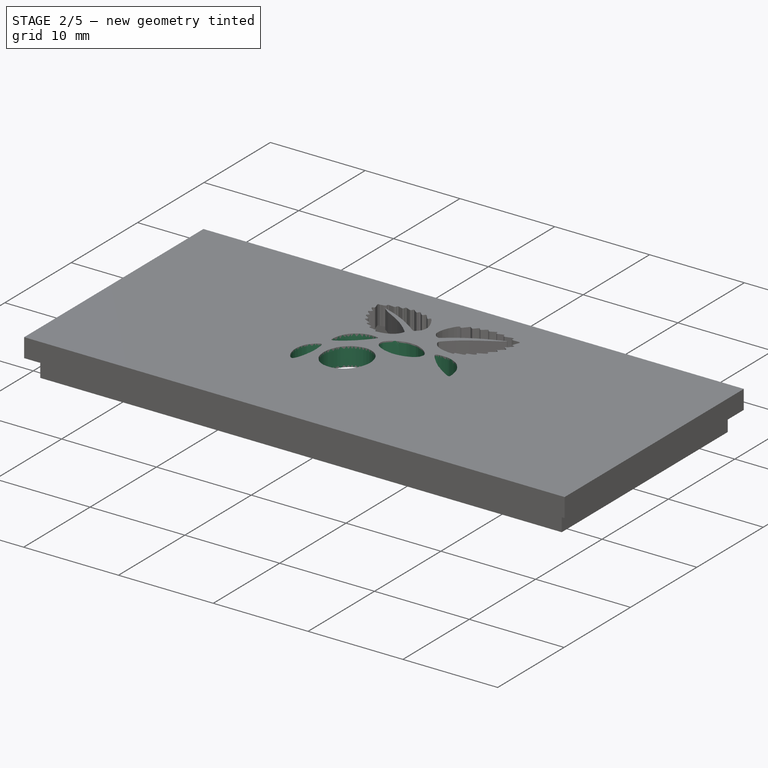
[diagram: stage 2 of 5 — iso view after this stage's code; geometry added in this stage tinted green]
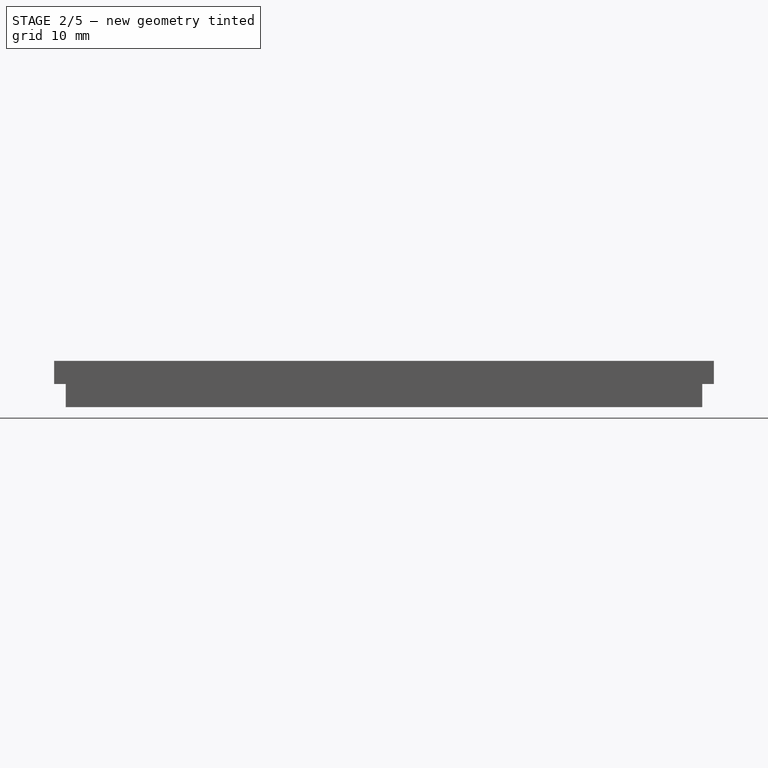
[diagram: stage 2 of 5 — front view after this stage's code; geometry added in this stage tinted green]
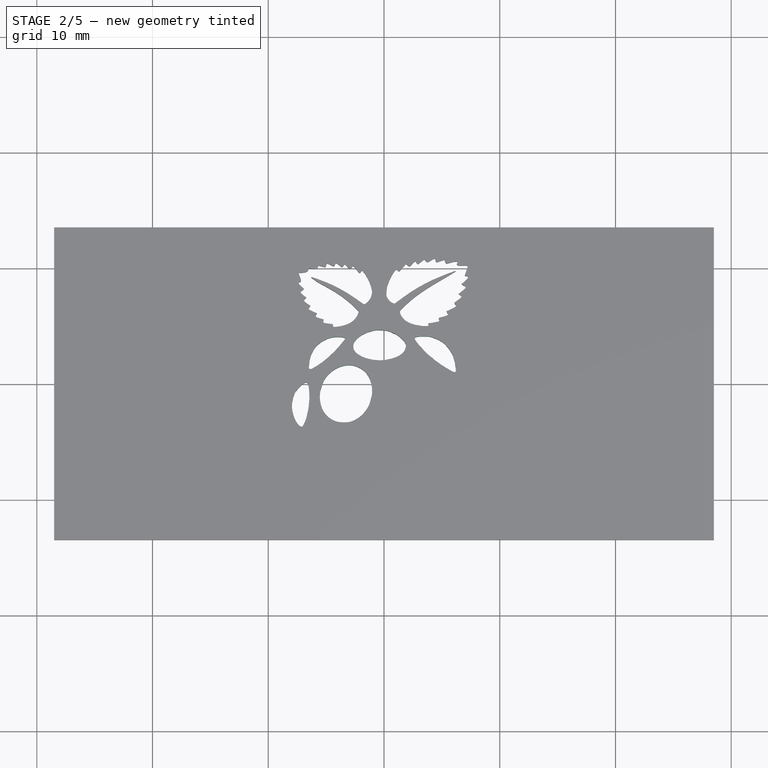
[diagram: stage 2 of 5 — top view after this stage's code; geometry added in this stage tinted green]
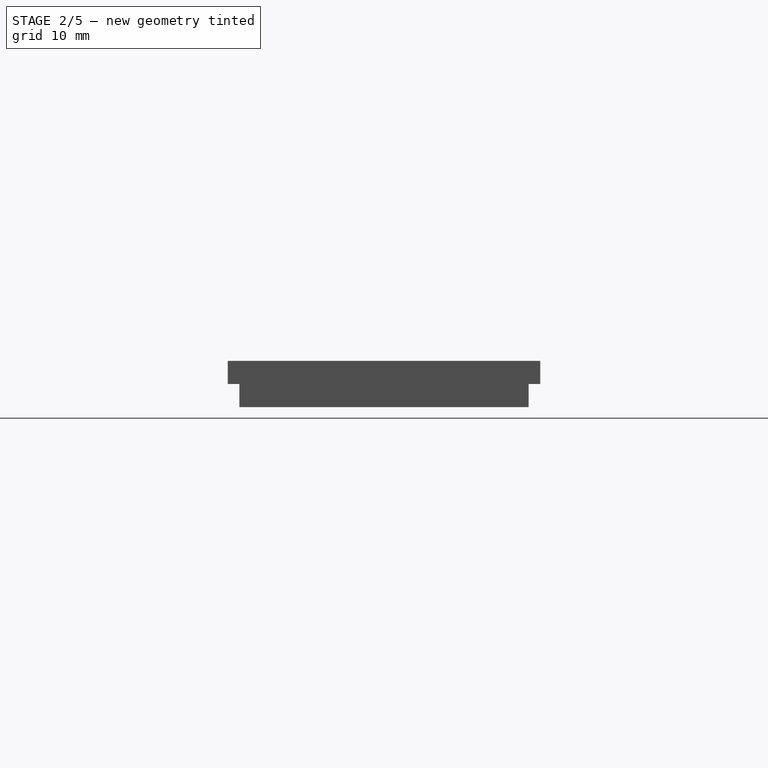
[diagram: stage 2 of 5 — right view after this stage's code; geometry added in this stage tinted green]
FEATURE [Sketcher::SketchObject] Sketch004
  FullyConstrained = false
  MapMode = 5
  Placement = pos=(0,0,2) rot=(0,0,1;0rad)
  Support = -> [Pocket001]
  sketch-geometry (88):
    g0-g42: Circle x43 (B-spline internal-alignment scaffolding for g43; pole/knot coordinates omitted)
    g43: BSplineCurve PolesCount=43 KnotsCount=44 Degree=3 IsPeriodic=1
    g44-g87: GeomPoint x44 (B-spline internal-alignment scaffolding for g43; pole/knot coordinates omitted)
  constraints (65):
    c: Weight(g0) = 1
    c: Equal(g0, g1-g9) x9
    c: PointOnObject(g9,g0)
    c: Equal(g0,g10)
    c: PointOnObject(g10,g1)
    c: Equal(g0,g11)
    c: PointOnObject(g11,g2)
    c: Equal(g0,g12)
    c: PointOnObject(g12,g3)
    c: Equal(g0,g13)
    c: PointOnObject(g13,g4)
    c: Equal(g0,g14)
    c: PointOnObject(g14,g5)
    c: Equal(g0,g15)
    c: Equal(g0,g16)
    c: Equal(g0,g17)
    c: PointOnObject(g17,g5)
    c: Equal(g0,g18)
    c: PointOnObject(g18,g4)
    c: Equal(g0,g19)
    c: PointOnObject(g19,g4)
    c: Equal(g0,g20)
    c: PointOnObject(g20,g7)
    c: Equal(g0,g21)
    c: PointOnObject(g21,g18)
    c: Equal(g0,g22)
    c: PointOnObject(g22,g19)
    c: Equal(g0,g23)
    c: PointOnObject(g23,g20)
    c: Equal(g0,g24)
    c: PointOnObject(g24,g21)
    c: Equal(g0,g25)
    c: PointOnObject(g25,g22)
    c: Equal(g0,g26)
    c: PointOnObject(g26,g23)
    c: Equal(g0,g27)
    c: PointOnObject(g27,g24)
    c: Equal(g0,g28)
    c: PointOnObject(g28,g25)
    c: Equal(g0,g29)
    c: Equal(g0,g30)
    c: Equal(g0,g31)
    c: PointOnObject(g31,g26)
    c: Equal(g0,g32)
    c: Equal(g0,g33)
    c: Equal(g0,g34)
    c: PointOnObject(g34,g26)
    c: Equal(g0,g35)
    c: PointOnObject(g35,g31)
    c: Equal(g0,g36)
    c: PointOnObject(g36,g32)
    c: Equal(g0,g37)
    c: PointOnObject(g37,g33)
    c: Equal(g0,g38)
    c: PointOnObject(g38,g34)
    c: Equal(g0,g39)
    c: PointOnObject(g39,g0)
    c: Equal(g0,g40)
    c: PointOnObject(g40,g2)
    c: Equal(g0,g41)
    c: PointOnObject(g41,g4)
    c: Equal(g0,g42)
    c: PointOnObject(g42,g6)
    c: InternalAlignment(g0-g42 -> g43) x43
    c: InternalAlignment(g44-g87 -> g43) x44
FEATURE [PartDesign::Pocket] Pocket002
  BaseFeature = -> Pocket001
  Direction = (0,0,-1)
  Length = 2
  Length2 = 5
  Profile = -> Sketch004
  ReferenceAxis = -> Sketch004 [N_Axis]
  Type = 0
FEATURE [Sketcher::SketchObject] Sketch005
  FullyConstrained = false
  MapMode = 5
  Placement = pos=(0,0,2) rot=(0,0,1;0rad)
  Support = -> [Pocket002]
  sketch-geometry (132):
    g0-g64: Circle x65 (B-spline internal-alignment scaffolding for g65; pole/knot coordinates omitted)
    g65: BSplineCurve PolesCount=65 KnotsCount=66 Degree=3 IsPeriodic=1
    g66-g131: GeomPoint x66 (B-spline internal-alignment scaffolding for g65; pole/knot coordinates omitted)
  constraints (118):
    c: Weight(g0) = 1
    c: Equal(g0, g1-g6) x6
    c: PointOnObject(g6,g0)
    c: Equal(g0,g7)
    c: PointOnObject(g7,g2)
    c: Equal(g0,g8)
    c: PointOnObject(g8,g4)
    c: Equal(g0,g9)
    c: PointOnObject(g9,g5)
    c: Equal(g0,g10)
    c: PointOnObject(g10,g6)
    c: Equal(g0,g11)
    c: PointOnObject(g11,g7)
    c: Equal(g0,g12)
    c: PointOnObject(g12,g8)
    c: Equal(g0,g13)
    c: PointOnObject(g13,g9)
    c: Equal(g0,g14)
    c: PointOnObject(g14,g10)
    c: Equal(g0,g15)
    c: PointOnObject(g15,g11)
    c: Equal(g0,g16)
    c: PointOnObject(g16,g12)
    c: Equal(g0,g17)
    c: PointOnObject(g17,g13)
    c: Equal(g0,g18)
    c: PointOnObject(g18,g14)
    c: Equal(g0,g19)
    c: PointOnObject(g19,g15)
    c: Equal(g0,g20)
    c: PointOnObject(g20,g16)
    c: Equal(g0,g21)
    c: PointOnObject(g21,g17)
    c: Equal(g0,g22)
    c: Equal(g0,g23)
    c: Equal(g0,g24)
    c: PointOnObject(g24,g18)
    c: Equal(g0,g25)
    c: PointOnObject(g25,g19)
    c: Equal(g0,g26)
    c: PointOnObject(g26,g20)
    c: Equal(g0,g27)
    c: PointOnObject(g27,g21)
    c: Equal(g0,g28)
    c: PointOnObject(g28,g22)
    c: Equal(g0,g29)
    c: PointOnObject(g29,g23)
    c: Equal(g0,g30)
    c: PointOnObject(g30,g24)
    c: Equal(g0,g31)
    c: PointOnObject(g31,g25)
    c: Equal(g0,g32)
    c: PointOnObject(g32,g26)
    c: Equal(g0,g33)
    c: PointOnObject(g33,g27)
    c: Equal(g0,g34)
    c: PointOnObject(g34,g28)
    c: Equal(g0,g35)
    c: PointOnObject(g35,g29)
    c: Equal(g0,g36)
    c: PointOnObject(g36,g30)
    c: Equal(g0,g37)
    c: PointOnObject(g37,g31)
    c: Equal(g0,g38)
    c: PointOnObject(g38,g32)
    c: Equal(g0,g39)
    c: PointOnObject(g39,g33)
    c: Equal(g0,g40)
    c: PointOnObject(g40,g34)
    c: Equal(g0,g41)
    c: PointOnObject(g41,g35)
    c: Equal(g0,g42)
    c: PointOnObject(g42,g36)
    c: Equal(g0,g43)
    c: PointOnObject(g43,g37)
    c: Equal(g0,g44)
    c: PointOnObject(g44,g38)
    c: Equal(g0,g45)
    c: PointOnObject(g45,g39)
    c: Equal(g0,g46)
    c: PointOnObject(g46,g40)
    c: Equal(g0,g47)
    c: PointOnObject(g47,g41)
    c: Equal(g0,g48)
    c: PointOnObject(g48,g42)
    c: Equal(g0,g49)
    c: PointOnObject(g49,g43)
    c: Equal(g0,g50)
    c: PointOnObject(g50,g44)
    c: Equal(g0,g51)
    c: PointOnObject(g51,g45)
    c: Equal(g0,g52)
    c: PointOnObject(g52,g46)
    c: Equal(g0,g53)
    c: Equal(g0,g54)
    c: PointOnObject(g54,g47)
    c: Equal(g0,g55)
    c: PointOnObject(g55,g48)
    c: Equal(g0,g56)
    c: PointOnObject(g56,g0)
    c: Equal(g0,g57)
    c: PointOnObject(g57,g49)
    c: Equal(g0,g58)
    c: PointOnObject(g58,g1)
    c: Equal(g0,g59)
    c: PointOnObject(g59,g50)
    c: Equal(g0,g60)
    c: PointOnObject(g60,g51)
    c: Equal(g0,g61)
    c: PointOnObject(g61,g52)
    c: Equal(g0,g62)
    c: PointOnObject(g62,g53)
    c: Equal(g0,g63)
    c: PointOnObject(g63,g54)
    c: Equal(g0,g64)
    c: PointOnObject(g64,g55)
    c: InternalAlignment(g0-g64 -> g65) x65
    c: InternalAlignment(g66-g131 -> g65) x66
FEATURE [PartDesign::Pocket] Pocket003
  BaseFeature = -> Pocket002
  Direction = (0,0,-1)
  Length = 2
  Length2 = 5
  Profile = -> Sketch005
  ReferenceAxis = -> Sketch005 [N_Axis]
  Type = 0
FEATURE [Sketcher::SketchObject] Sketch006
  FullyConstrained = false
  MapMode = 5
  Placement = pos=(0,0,2) rot=(0,0,1;0rad)
  Support = -> [Pocket003]
  sketch-geometry (86):
    g0-g41: Circle x42 (B-spline internal-alignment scaffolding for g42; pole/knot coordinates omitted)
    g42: BSplineCurve PolesCount=42 KnotsCount=43 Degree=3 IsPeriodic=1
    g43-g85: GeomPoint x43 (B-spline internal-alignment scaffolding for g42; pole/knot coordinates omitted)
  constraints (69):
    c: Weight(g0) = 1
    c: Equal(g0, g1-g4) x4
    c: PointOnObject(g4,g0)
    c: Equal(g0,g5)
    c: PointOnObject(g5,g1)
    c: Equal(g0,g6)
    c: PointOnObject(g6,g2)
    c: Equal(g0,g7)
    c: PointOnObject(g7,g3)
    c: Equal(g0,g8)
    c: PointOnObject(g8,g4)
    c: Equal(g0,g9)
    c: PointOnObject(g9,g5)
    c: Equal(g0,g10)
    c: PointOnObject(g10,g6)
    c: Equal(g0,g11)
    c: PointOnObject(g11,g7)
    c: Equal(g0,g12)
    c: PointOnObject(g12,g8)
    c: Equal(g0,g13)
    c: PointOnObject(g13,g9)
    c: Equal(g0,g14)
    c: PointOnObject(g14,g10)
    c: Equal(g0,g15)
    c: PointOnObject(g15,g11)
    c: Equal(g0,g16)
    c: PointOnObject(g16,g12)
    c: Equal(g0,g17)
    c: Equal(g0,g18)
    c: Equal(g0,g19)
    c: PointOnObject(g19,g12)
    c: Equal(g0,g20)
    c: PointOnObject(g20,g12)
    c: Equal(g0,g21)
    c: PointOnObject(g21,g12)
    c: Equal(g0,g22)
    c: PointOnObject(g22,g14)
    c: Equal(g0,g23)
    c: PointOnObject(g23,g19)
    c: Equal(g0,g24)
    c: PointOnObject(g24,g20)
    c: Equal(g0,g25)
    c: PointOnObject(g25,g22)
    c: Equal(g0,g26)
    c: PointOnObject(g26,g23)
    c: Equal(g0,g27)
    c: PointOnObject(g27,g24)
    c: Equal(g0,g28)
    c: PointOnObject(g28,g25)
    c: Equal(g0,g29)
    c: PointOnObject(g29,g26)
    c: Equal(g0,g30)
    c: PointOnObject(g30,g27)
    c: Equal(g0,g31)
    c: PointOnObject(g31,g28)
    c: Equal(g0,g32)
    c: PointOnObject(g32,g29)
    c: Equal(g0, g33-g37) x5
    c: PointOnObject(g37,g0)
    c: Equal(g0,g38)
    c: PointOnObject(g38,g1)
    c: Equal(g0,g39)
    c: PointOnObject(g39,g2)
    c: Equal(g0,g40)
    c: PointOnObject(g40,g34)
    c: Equal(g0,g41)
    c: PointOnObject(g41,g36)
    c: InternalAlignment(g0-g41 -> g42) x42
    c: InternalAlignment(g43-g85 -> g42) x43
FEATURE [PartDesign::Pocket] Pocket004
  BaseFeature = -> Pocket003
  Direction = (0,0,-1)
  Length = 2
  Length2 = 5
  Profile = -> Sketch006
  ReferenceAxis = -> Sketch006 [N_Axis]
  Type = 0
FEATURE [Sketcher::SketchObject] Sketch007
  FullyConstrained = false
  MapMode = 5
  Placement = pos=(0,0,2) rot=(0,0,1;0rad)
  Support = -> [Pocket004]
  sketch-geometry (84):
    g0-g40: Circle x41 (B-spline internal-alignment scaffolding for g41; pole/knot coordinates omitted)
    g41: BSplineCurve PolesCount=41 KnotsCount=42 Degree=3 IsPeriodic=1
    g42-g83: GeomPoint x42 (B-spline internal-alignment scaffolding for g41; pole/knot coordinates omitted)
  constraints (68):
    c: Weight(g0) = 1
    c: Equal(g0, g1-g5) x5
    c: PointOnObject(g5,g0)
    c: Equal(g0,g6)
    c: PointOnObject(g6,g2)
    c: Equal(g0,g7)
    c: PointOnObject(g7,g3)
    c: Equal(g0,g8)
    c: PointOnObject(g8,g4)
    c: Equal(g0,g9)
    c: PointOnObject(g9,g5)
    c: Equal(g0,g10)
    c: PointOnObject(g10,g6)
    c: Equal(g0,g11)
    c: PointOnObject(g11,g7)
    c: Equal(g0,g12)
    c: PointOnObject(g12,g8)
    c: Equal(g0,g13)
    c: PointOnObject(g13,g9)
    c: Equal(g0,g14)
    c: PointOnObject(g14,g10)
    c: Equal(g0,g15)
    c: PointOnObject(g15,g11)
    c: Equal(g0,g16)
    c: PointOnObject(g16,g12)
    c: Equal(g0,g17)
    c: Equal(g0,g18)
    c: PointOnObject(g18,g13)
    c: Equal(g0, g19-g22) x4
    c: PointOnObject(g22,g14)
    c: Equal(g0,g23)
    c: PointOnObject(g23,g15)
    c: Equal(g0,g24)
    c: PointOnObject(g24,g19)
    c: Equal(g0,g25)
    c: PointOnObject(g25,g20)
    c: Equal(g0,g26)
    c: PointOnObject(g26,g21)
    c: Equal(g0,g27)
    c: PointOnObject(g27,g22)
    c: Equal(g0,g28)
    c: PointOnObject(g28,g23)
    c: Equal(g0,g29)
    c: PointOnObject(g29,g24)
    c: Equal(g0,g30)
    c: PointOnObject(g30,g25)
    c: Equal(g0,g31)
    c: PointOnObject(g31,g26)
    c: Equal(g0,g32)
    c: PointOnObject(g32,g27)
    c: Equal(g0,g33)
    c: PointOnObject(g33,g28)
    c: Equal(g0,g34)
    c: PointOnObject(g34,g29)
    c: Equal(g0,g35)
    c: PointOnObject(g35,g30)
    c: Equal(g0,g36)
    c: PointOnObject(g36,g0)
    c: Equal(g0,g37)
    c: PointOnObject(g37,g5)
    c: Equal(g0,g38)
    c: PointOnObject(g38,g33)
    c: Equal(g0,g39)
    c: PointOnObject(g39,g34)
    c: Equal(g0,g40)
    c: PointOnObject(g40,g35)
    c: InternalAlignment(g0-g40 -> g41) x41
    c: InternalAlignment(g42-g83 -> g41) x42
FEATURE [PartDesign::Pocket] Pocket005
  BaseFeature = -> Pocket004
  Direction = (0,0,-1)
  Length = 2
  Length2 = 5
  Profile = -> Sketch007
  ReferenceAxis = -> Sketch007 [N_Axis]
  Type = 0
FEATURE [Sketcher::SketchObject] Sketch008
  FullyConstrained = false
  MapMode = 5
  Placement = pos=(0,0,2) rot=(0,0,1;0rad)
  Support = -> [Pocket005]
  sketch-geometry (96):
    g0-g46: Circle x47 (B-spline internal-alignment scaffolding for g47; pole/knot coordinates omitted)
    g47: BSplineCurve PolesCount=47 KnotsCount=48 Degree=3 IsPeriodic=1
    g48-g95: GeomPoint x48 (B-spline internal-alignment scaffolding for g47; pole/knot coordinates omitted)
  constraints (92):
    c: Weight(g0) = 1
    c: Equal(g0,g1)
    c: Equal(g0,g2)
    c: Equal(g0,g3)
    c: PointOnObject(g3,g0)
    c: Equal(g0,g4)
    c: PointOnObject(g4,g1)
    c: Equal(g0,g5)
    c: PointOnObject(g5,g2)
    c: Equal(g0,g6)
    c: PointOnObject(g6,g3)
    c: Equal(g0,g7)
    c: PointOnObject(g7,g4)
    c: Equal(g0,g8)
    c: PointOnObject(g8,g5)
    c: Equal(g0,g9)
    c: PointOnObject(g9,g6)
    c: Equal(g0,g10)
    c: PointOnObject(g10,g7)
    c: Equal(g0,g11)
    c: PointOnObject(g11,g8)
    c: Equal(g0,g12)
    c: PointOnObject(g12,g9)
    c: Equal(g0,g13)
    c: PointOnObject(g13,g10)
    c: Equal(g0,g14)
    c: PointOnObject(g14,g11)
    c: Equal(g0,g15)
    c: PointOnObject(g15,g12)
    c: Equal(g0,g16)
    c: PointOnObject(g16,g13)
    c: Equal(g0,g17)
    c: PointOnObject(g17,g14)
    c: Equal(g0,g18)
    c: PointOnObject(g18,g15)
    c: Equal(g0,g19)
    c: PointOnObject(g19,g16)
    c: Equal(g0,g20)
    c: PointOnObject(g20,g17)
    c: Equal(g0,g21)
    c: PointOnObject(g21,g18)
    c: Equal(g0,g22)
    c: PointOnObject(g22,g19)
    c: Equal(g0,g23)
    c: PointOnObject(g23,g20)
    c: Equal(g0,g24)
    c: PointOnObject(g24,g21)
    c: Equal(g0,g25)
    c: PointOnObject(g25,g22)
    c: Equal(g0,g26)
    c: PointOnObject(g26,g23)
    c: Equal(g0,g27)
    c: PointOnObject(g27,g24)
    c: Equal(g0,g28)
    c: PointOnObject(g28,g25)
    c: Equal(g0,g29)
    c: PointOnObject(g29,g26)
    c: Equal(g0,g30)
    c: PointOnObject(g30,g27)
    c: Equal(g0,g31)
    c: PointOnObject(g31,g28)
    c: Equal(g0,g32)
    c: PointOnObject(g32,g29)
    c: Equal(g0,g33)
    c: PointOnObject(g33,g30)
    c: Equal(g0,g34)
    c: PointOnObject(g34,g31)
    c: Equal(g0,g35)
    c: PointOnObject(g35,g32)
    c: Equal(g0,g36)
    c: PointOnObject(g36,g33)
    c: Equal(g0,g37)
    c: PointOnObject(g37,g34)
    c: Equal(g0,g38)
    c: PointOnObject(g38,g35)
    c: Equal(g0,g39)
    c: PointOnObject(g39,g36)
    c: Equal(g0,g40)
    c: PointOnObject(g40,g37)
    c: Equal(g0,g41)
    c: PointOnObject(g41,g38)
    c: Equal(g0,g42)
    c: PointOnObject(g42,g0)
    c: Equal(g0,g43)
    c: PointOnObject(g43,g1)
    c: Equal(g0,g44)
    c: PointOnObject(g44,g2)
    c: Equal(g0,g45)
    c: PointOnObject(g45,g3)
    c: Equal(g0,g46)
    c: InternalAlignment(g0-g46 -> g47) x47
    c: InternalAlignment(g48-g95 -> g47) x48
FEATURE [PartDesign::Pocket] Pocket006
  BaseFeature = -> Pocket005
  Direction = (0,0,-1)
  Length = 2
  Length2 = 5
  Profile = -> Sketch008
  ReferenceAxis = -> Sketch008 [N_Axis]
  Type = 0
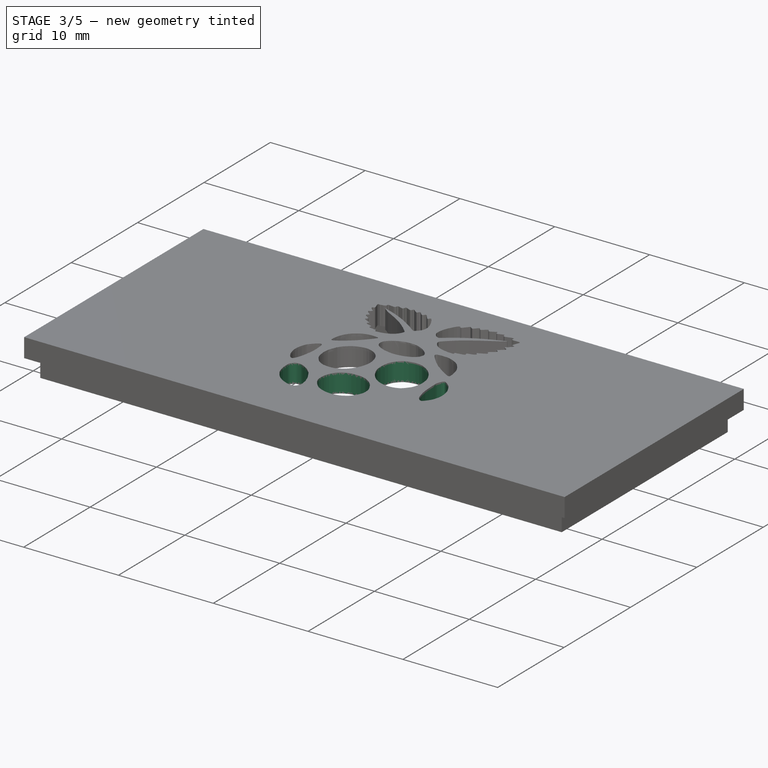
[diagram: stage 3 of 5 — iso view after this stage's code; geometry added in this stage tinted green]
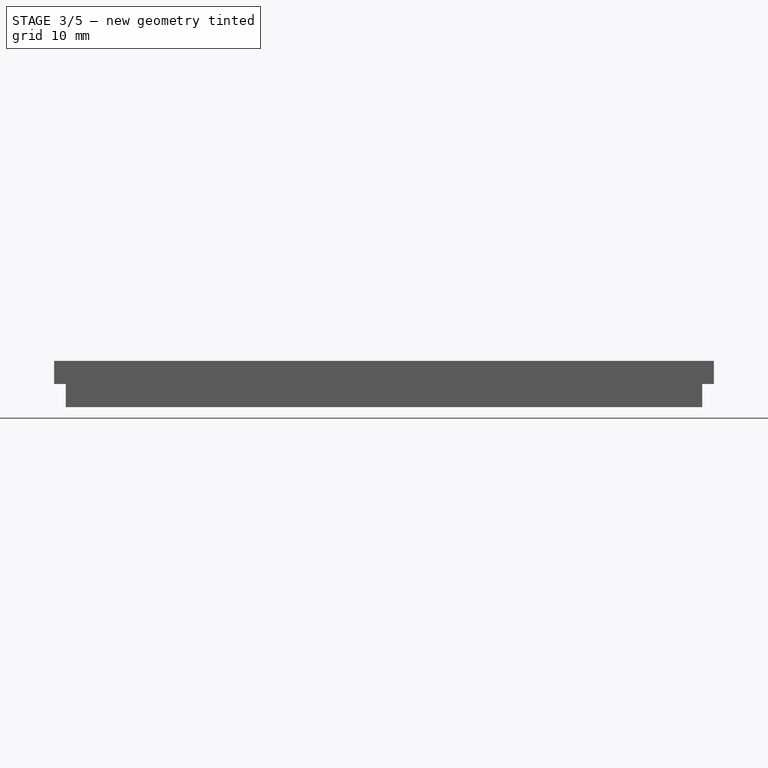
[diagram: stage 3 of 5 — front view after this stage's code; geometry added in this stage tinted green]
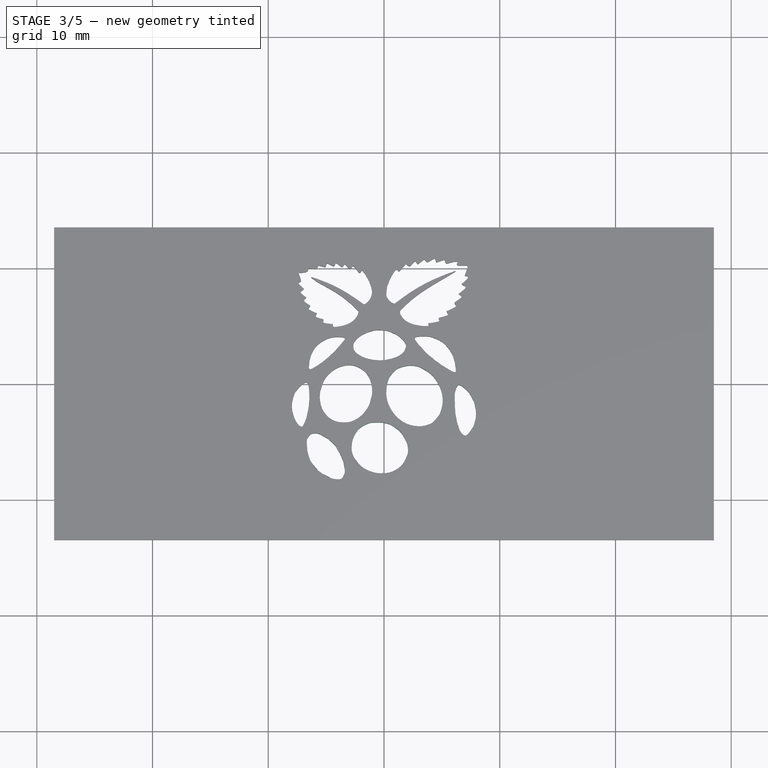
[diagram: stage 3 of 5 — top view after this stage's code; geometry added in this stage tinted green]
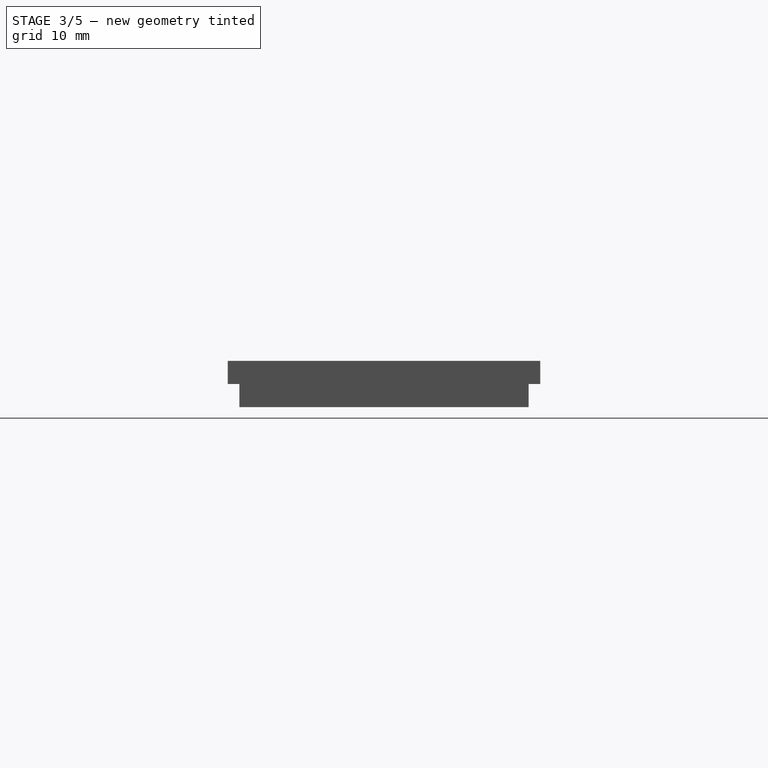
[diagram: stage 3 of 5 — right view after this stage's code; geometry added in this stage tinted green]
FEATURE [Sketcher::SketchObject] Sketch009
  FullyConstrained = false
  MapMode = 5
  Placement = pos=(0,0,2) rot=(0,0,1;0rad)
  Support = -> [Pocket006]
  sketch-geometry (98):
    g0-g47: Circle x48 (B-spline internal-alignment scaffolding for g48; pole/knot coordinates omitted)
    g48: BSplineCurve PolesCount=48 KnotsCount=49 Degree=3 IsPeriodic=1
    g49-g97: GeomPoint x49 (B-spline internal-alignment scaffolding for g48; pole/knot coordinates omitted)
  constraints (95):
    c: Weight(g0) = 1
    c: Equal(g0,g1)
    c: Equal(g0,g2)
    c: Equal(g0,g3)
    c: PointOnObject(g3,g0)
    c: Equal(g0,g4)
    c: PointOnObject(g4,g1)
    c: Equal(g0,g5)
    c: PointOnObject(g5,g2)
    c: Equal(g0,g6)
    c: PointOnObject(g6,g3)
    c: Equal(g0,g7)
    c: PointOnObject(g7,g4)
    c: Equal(g0,g8)
    c: PointOnObject(g8,g5)
    c: Equal(g0,g9)
    c: PointOnObject(g9,g6)
    c: Equal(g0,g10)
    c: PointOnObject(g10,g7)
    c: Equal(g0,g11)
    c: PointOnObject(g11,g8)
    c: Equal(g0,g12)
    c: PointOnObject(g12,g9)
    c: Equal(g0,g13)
    c: PointOnObject(g13,g10)
    c: Equal(g0,g14)
    c: PointOnObject(g14,g11)
    c: Equal(g0,g15)
    c: PointOnObject(g15,g12)
    c: Equal(g0,g16)
    c: PointOnObject(g16,g13)
    c: Equal(g0,g17)
    c: PointOnObject(g17,g14)
    c: Equal(g0,g18)
    c: PointOnObject(g18,g15)
    c: Equal(g0,g19)
    c: PointOnObject(g19,g16)
    c: Equal(g0,g20)
    c: PointOnObject(g20,g17)
    c: Equal(g0,g21)
    c: PointOnObject(g21,g18)
    c: Equal(g0,g22)
    c: PointOnObject(g22,g19)
    c: Equal(g0,g23)
    c: PointOnObject(g23,g20)
    c: Equal(g0,g24)
    c: PointOnObject(g24,g21)
    c: Equal(g0,g25)
    c: PointOnObject(g25,g22)
    c: Equal(g0,g26)
    c: PointOnObject(g26,g23)
    c: Equal(g0,g27)
    c: PointOnObject(g27,g24)
    c: Equal(g0,g28)
    c: PointOnObject(g28,g25)
    c: Equal(g0,g29)
    c: PointOnObject(g29,g26)
    c: Equal(g0,g30)
    c: PointOnObject(g30,g27)
    c: Equal(g0,g31)
    c: PointOnObject(g31,g28)
    c: Equal(g0,g32)
    c: PointOnObject(g32,g29)
    c: Equal(g0,g33)
    c: PointOnObject(g33,g30)
    c: Equal(g0,g34)
    c: PointOnObject(g34,g31)
    c: Equal(g0,g35)
    c: PointOnObject(g35,g32)
    c: Equal(g0,g36)
    c: PointOnObject(g36,g33)
    c: Equal(g0,g37)
    c: PointOnObject(g37,g34)
    c: Equal(g0,g38)
    c: PointOnObject(g38,g35)
    c: Equal(g0,g39)
    c: PointOnObject(g39,g36)
    c: Equal(g0,g40)
    c: PointOnObject(g40,g37)
    c: Equal(g0,g41)
    c: PointOnObject(g41,g38)
    c: Equal(g0,g42)
    c: PointOnObject(g42,g39)
    c: Equal(g0,g43)
    c: PointOnObject(g43,g40)
    c: Equal(g0,g44)
    c: PointOnObject(g44,g41)
    c: Equal(g0,g45)
    c: PointOnObject(g45,g42)
    c: Equal(g0,g46)
    c: PointOnObject(g46,g43)
    c: Equal(g0,g47)
    c: PointOnObject(g47,g44)
    c: InternalAlignment(g0-g47 -> g48) x48
    c: InternalAlignment(g49-g97 -> g48) x49
FEATURE [PartDesign::Pocket] Pocket007
  BaseFeature = -> Pocket006
  Direction = (0,0,-1)
  Length = 2
  Length2 = 5
  Profile = -> Sketch009
  ReferenceAxis = -> Sketch009 [N_Axis]
  Type = 0
FEATURE [Sketcher::SketchObject] Sketch010
  FullyConstrained = false
  MapMode = 5
  Placement = pos=(0,0,2) rot=(0,0,1;0rad)
  Support = -> [Pocket007]
  sketch-geometry (92):
    g0-g44: Circle x45 (B-spline internal-alignment scaffolding for g45; pole/knot coordinates omitted)
    g45: BSplineCurve PolesCount=45 KnotsCount=46 Degree=3 IsPeriodic=1
    g46-g91: GeomPoint x46 (B-spline internal-alignment scaffolding for g45; pole/knot coordinates omitted)
  constraints (80):
    c: Weight(g0) = 1
    c: Equal(g0, g1-g5) x5
    c: PointOnObject(g5,g0)
    c: Equal(g0,g6)
    c: PointOnObject(g6,g1)
    c: Equal(g0,g7)
    c: PointOnObject(g7,g2)
    c: Equal(g0,g8)
    c: PointOnObject(g8,g3)
    c: Equal(g0,g9)
    c: PointOnObject(g9,g4)
    c: Equal(g0,g10)
    c: PointOnObject(g10,g5)
    c: Equal(g0,g11)
    c: PointOnObject(g11,g6)
    c: Equal(g0,g12)
    c: PointOnObject(g12,g7)
    c: Equal(g0,g13)
    c: PointOnObject(g13,g8)
    c: Equal(g0,g14)
    c: PointOnObject(g14,g9)
    c: Equal(g0,g15)
    c: PointOnObject(g15,g10)
    c: Equal(g0,g16)
    c: PointOnObject(g16,g11)
    c: Equal(g0,g17)
    c: PointOnObject(g17,g12)
    c: Equal(g0,g18)
    c: PointOnObject(g18,g13)
    c: Equal(g0,g19)
    c: PointOnObject(g19,g14)
    c: Equal(g0,g20)
    c: PointOnObject(g20,g15)
    c: Equal(g0,g21)
    c: PointOnObject(g21,g16)
    c: Equal(g0,g22)
    c: PointOnObject(g22,g17)
    c: Equal(g0,g23)
    c: PointOnObject(g23,g18)
    c: Equal(g0,g24)
    c: PointOnObject(g24,g19)
    c: Equal(g0,g25)
    c: PointOnObject(g25,g20)
    c: Equal(g0,g26)
    c: PointOnObject(g26,g21)
    c: Equal(g0,g27)
    c: PointOnObject(g27,g22)
    c: Equal(g0,g28)
    c: Equal(g0,g29)
    c: Equal(g0,g30)
    c: PointOnObject(g30,g23)
    c: Equal(g0,g31)
    c: PointOnObject(g31,g24)
    c: Equal(g0,g32)
    c: PointOnObject(g32,g29)
    c: Equal(g0,g33)
    c: PointOnObject(g33,g30)
    c: Equal(g0,g34)
    c: PointOnObject(g34,g31)
    c: Equal(g0,g35)
    c: PointOnObject(g35,g32)
    c: Equal(g0,g36)
    c: PointOnObject(g36,g33)
    c: Equal(g0,g37)
    c: PointOnObject(g37,g34)
    c: Equal(g0,g38)
    c: PointOnObject(g38,g35)
    c: Equal(g0,g39)
    c: PointOnObject(g39,g36)
    c: Equal(g0,g40)
    c: PointOnObject(g40,g37)
    c: Equal(g0,g41)
    c: PointOnObject(g41,g4)
    c: Equal(g0,g42)
    c: PointOnObject(g42,g38)
    c: Equal(g0,g43)
    c: PointOnObject(g43,g39)
    c: Equal(g0,g44)
    c: InternalAlignment(g0-g44 -> g45) x45
    c: InternalAlignment(g46-g91 -> g45) x46
FEATURE [PartDesign::Pocket] Pocket008
  BaseFeature = -> Pocket007
  Direction = (0,0,-1)
  Length = 2
  Length2 = 5
  Profile = -> Sketch010
  ReferenceAxis = -> Sketch010 [N_Axis]
  Type = 0
FEATURE [Sketcher::SketchObject] Sketch011
  FullyConstrained = false
  MapMode = 5
  Placement = pos=(0,0,2) rot=(0,0,1;0rad)
  Support = -> [Pocket008]
  sketch-geometry (128):
    g0-g62: Circle x63 (B-spline internal-alignment scaffolding for g63; pole/knot coordinates omitted)
    g63: BSplineCurve PolesCount=63 KnotsCount=64 Degree=3 IsPeriodic=1
    g64-g127: GeomPoint x64 (B-spline internal-alignment scaffolding for g63; pole/knot coordinates omitted)
  constraints (117):
    c: Weight(g0) = 1
    c: Equal(g0, g1-g6) x6
    c: PointOnObject(g6,g0)
    c: Equal(g0,g7)
    c: PointOnObject(g7,g1)
    c: Equal(g0,g8)
    c: PointOnObject(g8,g2)
    c: Equal(g0,g9)
    c: PointOnObject(g9,g3)
    c: Equal(g0,g10)
    c: PointOnObject(g10,g4)
    c: Equal(g0,g11)
    c: PointOnObject(g11,g5)
    c: Equal(g0,g12)
    c: PointOnObject(g12,g6)
    c: Equal(g0,g13)
    c: PointOnObject(g13,g7)
    c: Equal(g0,g14)
    c: PointOnObject(g14,g8)
    c: Equal(g0,g15)
    c: PointOnObject(g15,g9)
    c: Equal(g0,g16)
    c: PointOnObject(g16,g10)
    c: Equal(g0,g17)
    c: PointOnObject(g17,g11)
    c: Equal(g0,g18)
    c: PointOnObject(g18,g12)
    c: Equal(g0,g19)
    c: PointOnObject(g19,g13)
    c: Equal(g0,g20)
    c: PointOnObject(g20,g14)
    c: Equal(g0,g21)
    c: PointOnObject(g21,g15)
    c: Equal(g0,g22)
    c: PointOnObject(g22,g16)
    c: Equal(g0,g23)
    c: PointOnObject(g23,g17)
    c: Equal(g0,g24)
    c: PointOnObject(g24,g17)
    c: Equal(g0,g25)
    c: PointOnObject(g25,g18)
    c: Equal(g0,g26)
    c: PointOnObject(g26,g19)
    c: Equal(g0,g27)
    c: PointOnObject(g27,g20)
    c: Equal(g0,g28)
    c: PointOnObject(g28,g21)
    c: Equal(g0,g29)
    c: PointOnObject(g29,g22)
    c: Equal(g0,g30)
    c: PointOnObject(g30,g23)
    c: Equal(g0,g31)
    c: PointOnObject(g31,g25)
    c: Equal(g0,g32)
    c: PointOnObject(g32,g26)
    c: Equal(g0,g33)
    c: PointOnObject(g33,g27)
    c: Equal(g0,g34)
    c: PointOnObject(g34,g28)
    c: Equal(g0,g35)
    c: PointOnObject(g35,g29)
    c: Equal(g0,g36)
    c: PointOnObject(g36,g30)
    c: Equal(g0,g37)
    c: PointOnObject(g37,g31)
    c: Equal(g0,g38)
    c: PointOnObject(g38,g32)
    c: Equal(g0,g39)
    c: PointOnObject(g39,g34)
    c: Equal(g0,g40)
    c: PointOnObject(g40,g35)
    c: Equal(g0,g41)
    c: PointOnObject(g41,g36)
    c: Equal(g0,g42)
    c: PointOnObject(g42,g37)
    c: Equal(g0,g43)
    c: PointOnObject(g43,g38)
    c: Equal(g0,g44)
    c: PointOnObject(g44,g39)
    c: Equal(g0,g45)
    c: PointOnObject(g45,g40)
    c: Equal(g0,g46)
    c: PointOnObject(g46,g41)
    c: Equal(g0,g47)
    c: PointOnObject(g47,g42)
    c: Equal(g0,g48)
    c: PointOnObject(g48,g43)
    c: Equal(g0,g49)
    c: PointOnObject(g49,g44)
    c: Equal(g0,g50)
    c: PointOnObject(g50,g45)
    c: Equal(g0,g51)
    c: PointOnObject(g51,g46)
    c: Equal(g0,g52)
    c: PointOnObject(g52,g47)
    c: Equal(g0,g53)
    c: PointOnObject(g53,g48)
    c: Equal(g0,g54)
    c: PointOnObject(g54,g49)
    c: Equal(g0,g55)
    c: PointOnObject(g55,g50)
    c: Equal(g0,g56)
    c: PointOnObject(g56,g51)
    c: Equal(g0,g57)
    c: PointOnObject(g57,g52)
    c: Equal(g0,g58)
    c: PointOnObject(g58,g53)
    c: Equal(g0,g59)
    c: PointOnObject(g59,g2)
    c: Equal(g0,g60)
    c: PointOnObject(g60,g3)
    c: Equal(g0,g61)
    c: PointOnObject(g61,g4)
    c: Equal(g0,g62)
    c: PointOnObject(g62,g5)
    c: InternalAlignment(g0-g62 -> g63) x63
    c: InternalAlignment(g64-g127 -> g63) x64
FEATURE [PartDesign::Pocket] Pocket009
  BaseFeature = -> Pocket008
  Direction = (0,0,-1)
  Length = 2
  Length2 = 5
  Profile = -> Sketch011
  ReferenceAxis = -> Sketch011 [N_Axis]
  Type = 0
FEATURE [Sketcher::SketchObject] Sketch012
  FullyConstrained = false
  MapMode = 5
  Placement = pos=(0,0,2) rot=(0,0,1;0rad)
  Support = -> [Pocket009]
  sketch-geometry (118):
    g0-g57: Circle x58 (B-spline internal-alignment scaffolding for g58; pole/knot coordinates omitted)
    g58: BSplineCurve PolesCount=58 KnotsCount=59 Degree=3 IsPeriodic=1
    g59-g117: GeomPoint x59 (B-spline internal-alignment scaffolding for g58; pole/knot coordinates omitted)
  constraints (111):
    c: Weight(g0) = 1
    c: Equal(g0, g1-g4) x4
    c: PointOnObject(g4,g0)
    c: Equal(g0,g5)
    c: PointOnObject(g5,g1)
    c: Equal(g0,g6)
    c: PointOnObject(g6,g2)
    c: Equal(g0,g7)
    c: PointOnObject(g7,g3)
    c: Equal(g0,g8)
    c: PointOnObject(g8,g4)
    c: Equal(g0,g9)
    c: PointOnObject(g9,g5)
    c: Equal(g0,g10)
    c: PointOnObject(g10,g6)
    c: Equal(g0,g11)
    c: PointOnObject(g11,g7)
    c: Equal(g0,g12)
    c: PointOnObject(g12,g8)
    c: Equal(g0,g13)
    c: PointOnObject(g13,g9)
    c: Equal(g0,g14)
    c: PointOnObject(g14,g10)
    c: Equal(g0,g15)
    c: PointOnObject(g15,g11)
    c: Equal(g0,g16)
    c: PointOnObject(g16,g12)
    c: Equal(g0,g17)
    c: PointOnObject(g17,g13)
    c: Equal(g0,g18)
    c: PointOnObject(g18,g14)
    c: Equal(g0,g19)
    c: PointOnObject(g19,g15)
    c: Equal(g0,g20)
    c: PointOnObject(g20,g16)
    c: Equal(g0,g21)
    c: PointOnObject(g21,g17)
    c: Equal(g0,g22)
    c: PointOnObject(g22,g18)
    c: Equal(g0,g23)
    c: PointOnObject(g23,g19)
    c: Equal(g0,g24)
    c: PointOnObject(g24,g20)
    c: Equal(g0,g25)
    c: PointOnObject(g25,g21)
    c: Equal(g0,g26)
    c: PointOnObject(g26,g22)
    c: Equal(g0,g27)
    c: PointOnObject(g27,g23)
    c: Equal(g0,g28)
    c: PointOnObject(g28,g24)
    c: Equal(g0,g29)
    c: PointOnObject(g29,g25)
    c: Equal(g0,g30)
    c: PointOnObject(g30,g26)
    c: Equal(g0,g31)
    c: PointOnObject(g31,g27)
    c: Equal(g0,g32)
    c: PointOnObject(g32,g28)
    c: Equal(g0,g33)
    c: PointOnObject(g33,g29)
    c: Equal(g0,g34)
    c: PointOnObject(g34,g30)
    c: Equal(g0,g35)
    c: PointOnObject(g35,g31)
    c: Equal(g0,g36)
    c: PointOnObject(g36,g32)
    c: Equal(g0,g37)
    c: PointOnObject(g37,g33)
    c: Equal(g0,g38)
    c: PointOnObject(g38,g34)
    c: Equal(g0,g39)
    c: PointOnObject(g39,g35)
    c: Equal(g0,g40)
    c: PointOnObject(g40,g36)
    c: Equal(g0,g41)
    c: PointOnObject(g41,g37)
    c: Equal(g0,g42)
    c: PointOnObject(g42,g38)
    c: Equal(g0,g43)
    c: PointOnObject(g43,g39)
    c: Equal(g0,g44)
    c: PointOnObject(g44,g40)
    c: Equal(g0,g45)
    c: PointOnObject(g45,g41)
    c: Equal(g0,g46)
    c: PointOnObject(g46,g42)
    c: Equal(g0,g47)
    c: PointOnObject(g47,g43)
    c: Equal(g0,g48)
    c: PointOnObject(g48,g44)
    c: Equal(g0,g49)
    c: PointOnObject(g49,g45)
    c: Equal(g0,g50)
    c: PointOnObject(g50,g46)
    c: Equal(g0,g51)
    c: PointOnObject(g51,g47)
    c: Equal(g0,g52)
    c: PointOnObject(g52,g48)
    c: Equal(g0,g53)
    c: PointOnObject(g53,g49)
    c: Equal(g0,g54)
    c: PointOnObject(g54,g50)
    c: Equal(g0,g55)
    c: PointOnObject(g55,g51)
    c: Equal(g0,g56)
    c: PointOnObject(g56,g52)
    c: Equal(g0,g57)
    c: PointOnObject(g57,g3)
    c: InternalAlignment(g0-g57 -> g58) x58
    c: InternalAlignment(g59-g117 -> g58) x59
FEATURE [PartDesign::Pocket] Pocket010
  BaseFeature = -> Pocket009
  Direction = (0,0,-1)
  Length = 2
  Length2 = 5
  Profile = -> Sketch012
  ReferenceAxis = -> Sketch012 [N_Axis]
  Type = 0
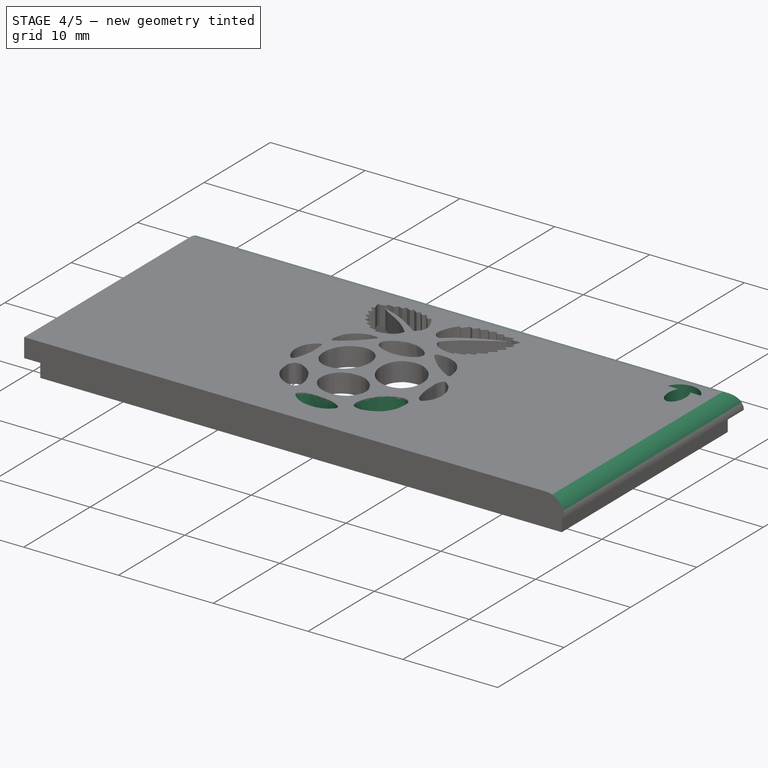
[diagram: stage 4 of 5 — iso view after this stage's code; geometry added in this stage tinted green]
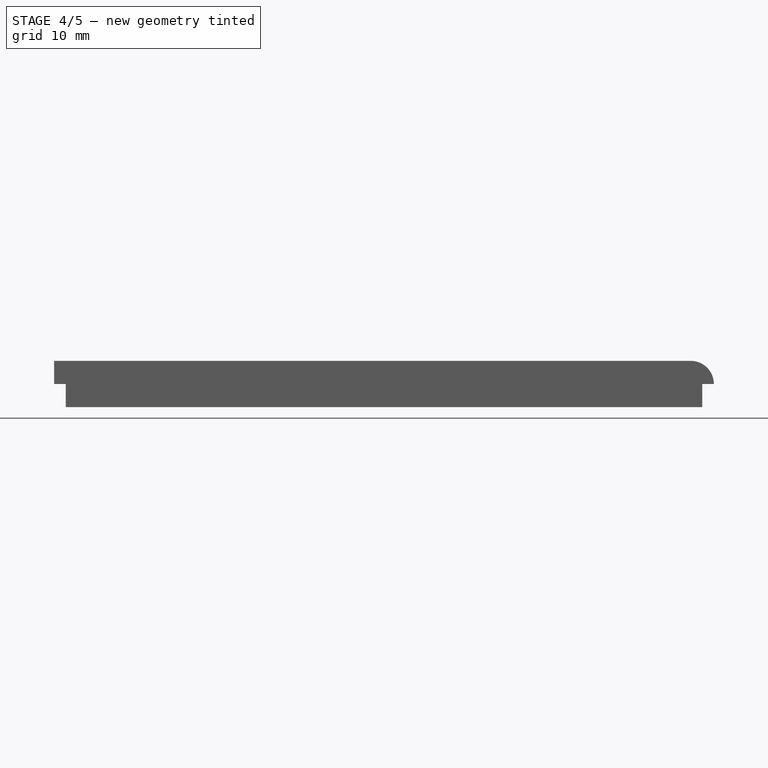
[diagram: stage 4 of 5 — front view after this stage's code; geometry added in this stage tinted green]
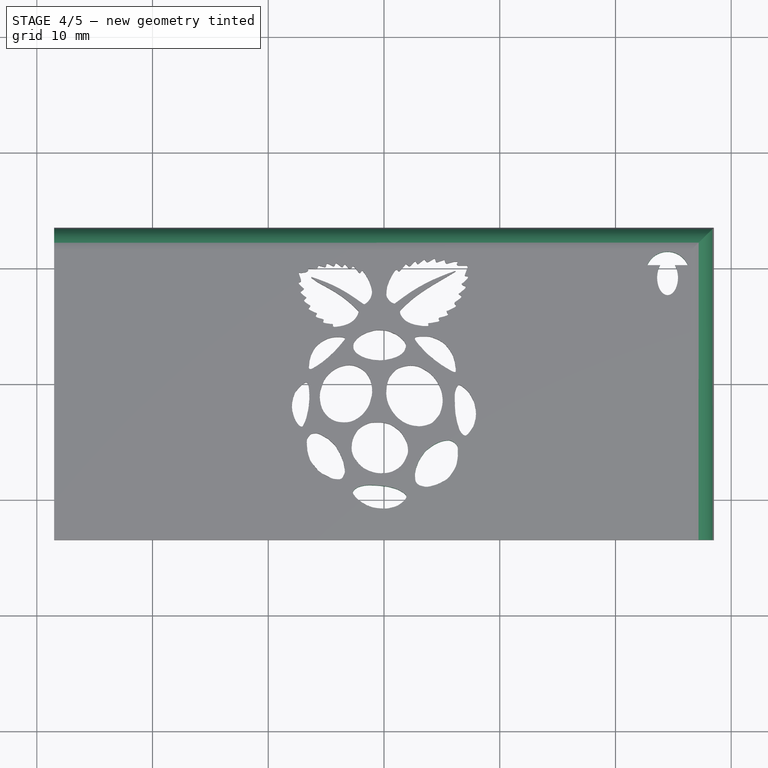
[diagram: stage 4 of 5 — top view after this stage's code; geometry added in this stage tinted green]
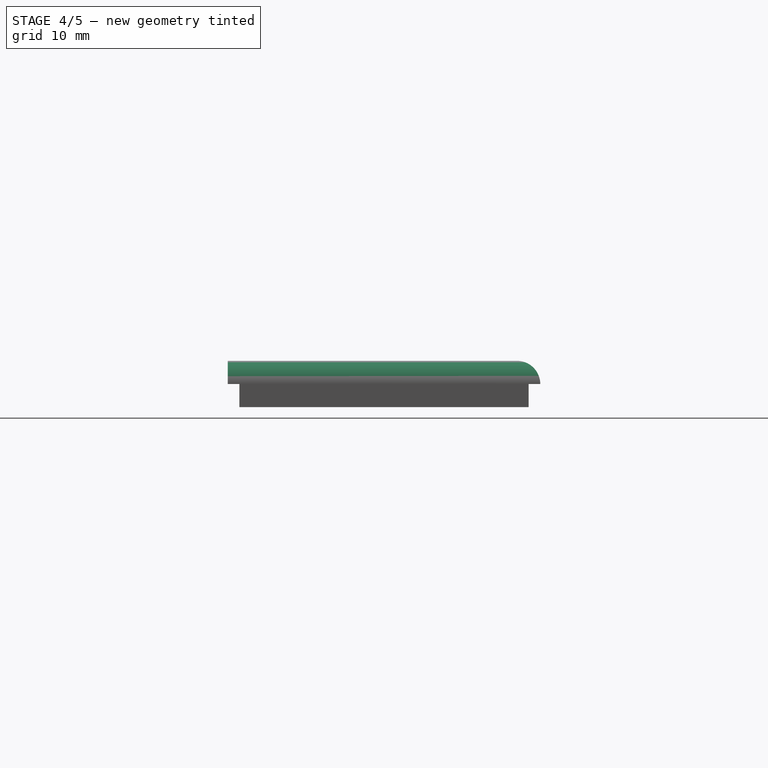
[diagram: stage 4 of 5 — right view after this stage's code; geometry added in this stage tinted green]
FEATURE [Sketcher::SketchObject] Sketch013
  FullyConstrained = false
  MapMode = 5
  Placement = pos=(0,0,2) rot=(0,0,1;0rad)
  Support = -> [Pocket010]
  sketch-geometry (98):
    g0-g47: Circle x48 (B-spline internal-alignment scaffolding for g48; pole/knot coordinates omitted)
    g48: BSplineCurve PolesCount=48 KnotsCount=49 Degree=3 IsPeriodic=1
    g49-g97: GeomPoint x49 (B-spline internal-alignment scaffolding for g48; pole/knot coordinates omitted)
  constraints (91):
    c: Weight(g0) = 1
    c: Equal(g0, g1-g4) x4
    c: PointOnObject(g4,g0)
    c: Equal(g0,g5)
    c: PointOnObject(g5,g1)
    c: Equal(g0,g6)
    c: PointOnObject(g6,g2)
    c: Equal(g0,g7)
    c: PointOnObject(g7,g3)
    c: Equal(g0,g8)
    c: PointOnObject(g8,g4)
    c: Equal(g0,g9)
    c: PointOnObject(g9,g5)
    c: Equal(g0,g10)
    c: PointOnObject(g10,g6)
    c: Equal(g0,g11)
    c: PointOnObject(g11,g7)
    c: Equal(g0,g12)
    c: PointOnObject(g12,g8)
    c: Equal(g0,g13)
    c: PointOnObject(g13,g9)
    c: Equal(g0,g14)
    c: PointOnObject(g14,g10)
    c: Equal(g0,g15)
    c: PointOnObject(g15,g11)
    c: Equal(g0,g16)
    c: PointOnObject(g16,g12)
    c: Equal(g0,g17)
    c: PointOnObject(g17,g13)
    c: Equal(g0,g18)
    c: PointOnObject(g18,g14)
    c: Equal(g0,g19)
    c: PointOnObject(g19,g15)
    c: Equal(g0,g20)
    c: PointOnObject(g20,g16)
    c: Equal(g0,g21)
    c: PointOnObject(g21,g17)
    c: Equal(g0,g22)
    c: PointOnObject(g22,g18)
    c: Equal(g0,g23)
    c: PointOnObject(g23,g19)
    c: Equal(g0,g24)
    c: PointOnObject(g24,g20)
    c: Equal(g0,g25)
    c: PointOnObject(g25,g21)
    c: Equal(g0,g26)
    c: PointOnObject(g26,g22)
    c: Equal(g0,g27)
    c: PointOnObject(g27,g23)
    c: Equal(g0,g28)
    c: PointOnObject(g28,g24)
    c: Equal(g0,g29)
    c: PointOnObject(g29,g25)
    c: Equal(g0,g30)
    c: PointOnObject(g30,g26)
    c: Equal(g0,g31)
    c: PointOnObject(g31,g27)
    c: Equal(g0,g32)
    c: PointOnObject(g32,g28)
    c: Equal(g0,g33)
    c: PointOnObject(g33,g29)
    c: Equal(g0,g34)
    c: PointOnObject(g34,g30)
    c: Equal(g0,g35)
    c: PointOnObject(g35,g31)
    c: Equal(g0,g36)
    c: PointOnObject(g36,g32)
    c: Equal(g0,g37)
    c: PointOnObject(g37,g33)
    c: Equal(g0,g38)
    c: PointOnObject(g38,g34)
    c: Equal(g0,g39)
    c: PointOnObject(g39,g35)
    c: Equal(g0,g40)
    c: PointOnObject(g40,g36)
    c: Equal(g0,g41)
    c: PointOnObject(g41,g37)
    c: Equal(g0,g42)
    c: PointOnObject(g42,g38)
    c: Equal(g0,g43)
    c: PointOnObject(g43,g39)
    c: Equal(g0,g44)
    c: PointOnObject(g44,g40)
    c: Equal(g0,g45)
    c: PointOnObject(g45,g41)
    c: Equal(g0,g46)
    c: PointOnObject(g46,g2)
    c: Equal(g0,g47)
    c: PointOnObject(g47,g43)
    c: InternalAlignment(g0-g47 -> g48) x48
    c: InternalAlignment(g49-g97 -> g48) x49
FEATURE [PartDesign::Pocket] Pocket011
  BaseFeature = -> Pocket010
  Direction = (0,0,-1)
  Length = 2
  Length2 = 5
  Profile = -> Sketch013
  ReferenceAxis = -> Sketch013 [N_Axis]
  Type = 0
FEATURE [Sketcher::SketchObject] Sketch014
  FullyConstrained = false
  MapMode = 5
  Placement = pos=(0,0,2) rot=(0,0,1;0rad)
  Support = -> [Pocket011]
  sketch-geometry (110):
    g0-g53: Circle x54 (B-spline internal-alignment scaffolding for g54; pole/knot coordinates omitted)
    g54: BSplineCurve PolesCount=54 KnotsCount=55 Degree=3 IsPeriodic=1
    g55-g109: GeomPoint x55 (B-spline internal-alignment scaffolding for g54; pole/knot coordinates omitted)
  constraints (99):
    c: Weight(g0) = 1
    c: Equal(g0, g1-g5) x5
    c: PointOnObject(g5,g0)
    c: Equal(g0,g6)
    c: PointOnObject(g6,g1)
    c: Equal(g0,g7)
    c: PointOnObject(g7,g2)
    c: Equal(g0,g8)
    c: PointOnObject(g8,g3)
    c: Equal(g0,g9)
    c: PointOnObject(g9,g4)
    c: Equal(g0,g10)
    c: PointOnObject(g10,g5)
    c: Equal(g0,g11)
    c: PointOnObject(g11,g6)
    c: Equal(g0,g12)
    c: PointOnObject(g12,g7)
    c: Equal(g0,g13)
    c: PointOnObject(g13,g8)
    c: Equal(g0,g14)
    c: PointOnObject(g14,g9)
    c: Equal(g0,g15)
    c: PointOnObject(g15,g10)
    c: Equal(g0,g16)
    c: PointOnObject(g16,g11)
    c: Equal(g0,g17)
    c: PointOnObject(g17,g12)
    c: Equal(g0,g18)
    c: PointOnObject(g18,g13)
    c: Equal(g0,g19)
    c: PointOnObject(g19,g14)
    c: Equal(g0,g20)
    c: PointOnObject(g20,g15)
    c: Equal(g0,g21)
    c: PointOnObject(g21,g16)
    c: Equal(g0,g22)
    c: PointOnObject(g22,g17)
    c: Equal(g0,g23)
    c: Equal(g0,g24)
    c: Equal(g0,g25)
    c: PointOnObject(g25,g18)
    c: Equal(g0,g26)
    c: PointOnObject(g26,g19)
    c: Equal(g0,g27)
    c: PointOnObject(g27,g20)
    c: Equal(g0,g28)
    c: PointOnObject(g28,g21)
    c: Equal(g0,g29)
    c: PointOnObject(g29,g23)
    c: Equal(g0,g30)
    c: PointOnObject(g30,g24)
    c: Equal(g0,g31)
    c: PointOnObject(g31,g25)
    c: Equal(g0,g32)
    c: PointOnObject(g32,g26)
    c: Equal(g0,g33)
    c: PointOnObject(g33,g27)
    c: Equal(g0,g34)
    c: PointOnObject(g34,g28)
    c: Equal(g0,g35)
    c: PointOnObject(g35,g29)
    c: Equal(g0,g36)
    c: PointOnObject(g36,g30)
    c: Equal(g0,g37)
    c: PointOnObject(g37,g31)
    c: Equal(g0,g38)
    c: PointOnObject(g38,g32)
    c: Equal(g0,g39)
    c: PointOnObject(g39,g33)
    c: Equal(g0,g40)
    c: PointOnObject(g40,g35)
    c: Equal(g0,g41)
    c: PointOnObject(g41,g37)
    c: Equal(g0,g42)
    c: PointOnObject(g42,g38)
    c: Equal(g0,g43)
    c: PointOnObject(g43,g39)
    c: Equal(g0,g44)
    c: PointOnObject(g44,g40)
    c: Equal(g0,g45)
    c: PointOnObject(g45,g41)
    c: Equal(g0,g46)
    c: PointOnObject(g46,g42)
    c: Equal(g0,g47)
    c: PointOnObject(g47,g0)
    c: Equal(g0,g48)
    c: PointOnObject(g48,g44)
    c: Equal(g0,g49)
    c: PointOnObject(g49,g45)
    c: Equal(g0,g50)
    c: PointOnObject(g50,g2)
    c: Equal(g0,g51)
    c: PointOnObject(g51,g3)
    c: Equal(g0,g52)
    c: PointOnObject(g52,g4)
    c: Equal(g0,g53)
    c: PointOnObject(g53,g47)
    c: InternalAlignment(g0-g53 -> g54) x54
    c: InternalAlignment(g55-g109 -> g54) x55
FEATURE [PartDesign::Pocket] Pocket012
  BaseFeature = -> Pocket011
  Direction = (0,0,-1)
  Length = 2
  Length2 = 5
  Profile = -> Sketch014
  ReferenceAxis = -> Sketch014 [N_Axis]
  Type = 0
FEATURE [Sketcher::SketchObject] Sketch015
  ExternalGeometry = -> [Pocket012]
  FullyConstrained = true
  MapMode = 5
  Placement = pos=(0,0,2) rot=(0,0,1;0rad)
  Support = -> [Pocket012]
  sketch-geometry (8):
    g0: ArcOfCircle CenterX=24.5 CenterY=9.5 CenterZ=0 NormalX=0 NormalY=0 NormalZ=1 AngleXU=0 Radius=1.9 StartAngle=0.400021 EndAngle=2.74157
    g1: ArcOfEllipse CenterX=24.5 CenterY=9.17 CenterZ=0 NormalX=0 NormalY=0 NormalZ=1 MajorRadius=1.52 MinorRadius=0.901033 AngleXU=1.5708 StartAngle=0.789919 EndAngle=5.49327
    g2: LineSegment StartX=24.5 StartY=10.69 StartZ=0 EndX=24.5 EndY=7.65 EndZ=0
    g3: LineSegment StartX=23.599 StartY=9.17 StartZ=0 EndX=25.401 EndY=9.17 EndZ=0
    g4: GeomPoint X=24.5 Y=10.3941 Z=0
    g5: GeomPoint X=24.5 Y=7.94585 Z=0
    g6: LineSegment StartX=22.75 StartY=10.2399 StartZ=0 EndX=23.86 EndY=10.2399 EndZ=0
    g7: LineSegment StartX=25.14 StartY=10.2399 StartZ=0 EndX=26.25 EndY=10.2399 EndZ=0
  constraints (17):
    c: DistanceX(g0,g0) = 3.5
    c: Radius(g0) = 1.9
    c: InternalAlignment(g2-g5 -> g1) x4
    c: Coincident(g6,g0)
    c: Coincident(g7,g0)
    c: Horizontal(g6)
    c: Coincident(g1,g7)
    c: Coincident(g1,g6)
    c: DistanceX(g0,g1) = 0
    c: DistanceY(g1,g0) = 0.33
    c: DistanceX(g7,g7) = 1.11
    c: DistanceX(g6,g6) = 1.11
    c: Horizontal(g7)
    c: DistanceY(g2,g1) = 1.52
    c: DistanceX(g2,g1) = 0
    c: DistanceX(g0,g-3) = 4
    c: DistanceY(g0,g-3) = 4
FEATURE [Sketcher::SketchObject] Sketch016
  FullyConstrained = false
  MapMode = 5
  Placement = pos=(-28.5,0,0) rot=(0.57735,-0.57735,-0.57735;2.0944rad)
  sketch-geometry (3):
    g0: ArcOfCircle CenterX=11.5 CenterY=0 CenterZ=0 NormalX=0 NormalY=0 NormalZ=1 AngleXU=0 Radius=2 StartAngle=0 EndAngle=1.5708
    g1: LineSegment StartX=11.5 StartY=2 StartZ=0 EndX=13.5 EndY=2 EndZ=0
    g2: LineSegment StartX=13.5 StartY=2 StartZ=0 EndX=13.5 EndY=0 EndZ=0
  constraints (5):
    c: DistanceX(g0,g0) = 0
    c: DistanceY(g0,g0) = 0
    c: Coincident(g1,g0)
    c: Coincident(g2,g1)
    c: Coincident(g2,g0)
FEATURE [Sketcher::SketchObject] Sketch018
  FullyConstrained = false
  MapMode = 5
  Placement = pos=(0,13.5,0) rot=(0,0.707107,0.707107;3.14159rad)
  sketch-geometry (3):
    g0: ArcOfCircle CenterX=-26.5 CenterY=0 CenterZ=0 NormalX=0 NormalY=0 NormalZ=1 AngleXU=0 Radius=2 StartAngle=1.5708 EndAngle=3.14159
    g1: LineSegment StartX=-26.5 StartY=2 StartZ=0 EndX=-28.5 EndY=2 EndZ=0
    g2: LineSegment StartX=-28.5 StartY=2 StartZ=0 EndX=-28.5 EndY=2e-16 EndZ=0
  constraints (5):
    c: PointOnObject(g0,g-1)
    c: DistanceX(g0,g0) = 0
    c: Coincident(g1,g0)
    c: Coincident(g2,g1)
    c: Coincident(g2,g0)
FEATURE [Sketcher::SketchObject] Sketch019
  AttachmentOffset = pos=(0,0,1) rot=(0,0,1;0rad)
  FullyConstrained = false
  MapMode = 5
  Placement = pos=(28.5,0,0) rot=(0.57735,0.57735,0.57735;2.0944rad)
  sketch-geometry (3):
    g0: ArcOfCircle CenterX=11.5 CenterY=0 CenterZ=0 NormalX=0 NormalY=0 NormalZ=1 AngleXU=0 Radius=2 StartAngle=0 EndAngle=1.5708
    g1: LineSegment StartX=11.5 StartY=2 StartZ=0 EndX=13.5 EndY=2 EndZ=0
    g2: LineSegment StartX=13.5 StartY=0 StartZ=0 EndX=13.5 EndY=2 EndZ=0
  constraints (4):
    c: DistanceX(g0,g0) = 0
    c: Coincident(g1,g0)
    c: Coincident(g2,g0)
    c: Coincident(g2,g1)
FEATURE [PartDesign::Pocket] Pocket017
  BaseFeature = -> Pocket012
  Direction = (-1,0,0)
  Length = 57
  Length2 = 5
  Profile = -> Sketch019
  ReferenceAxis = -> Sketch019 [N_Axis]
  Type = 0
FEATURE [PartDesign::Pocket] Pocket018
  BaseFeature = -> Pocket017
  Direction = (0,-1,2e-16)
  Length = 27
  Length2 = 5
  Profile = -> Sketch018
  ReferenceAxis = -> Sketch018 [N_Axis]
  Type = 0
FEATURE [PartDesign::Pocket] Pocket019
  BaseFeature = -> Pocket018
  Direction = (0,0,-1)
  Length = 2
  Length2 = 5
  Profile = -> Sketch015
  ReferenceAxis = -> Sketch015 [N_Axis]
  Type = 0
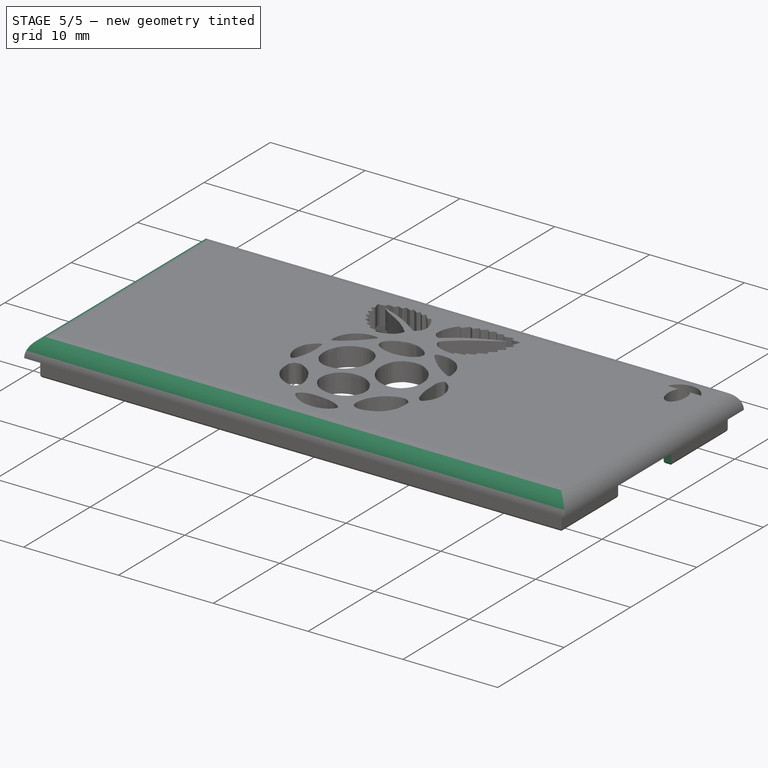
[diagram: stage 5 of 5 — iso view after this stage's code; geometry added in this stage tinted green]
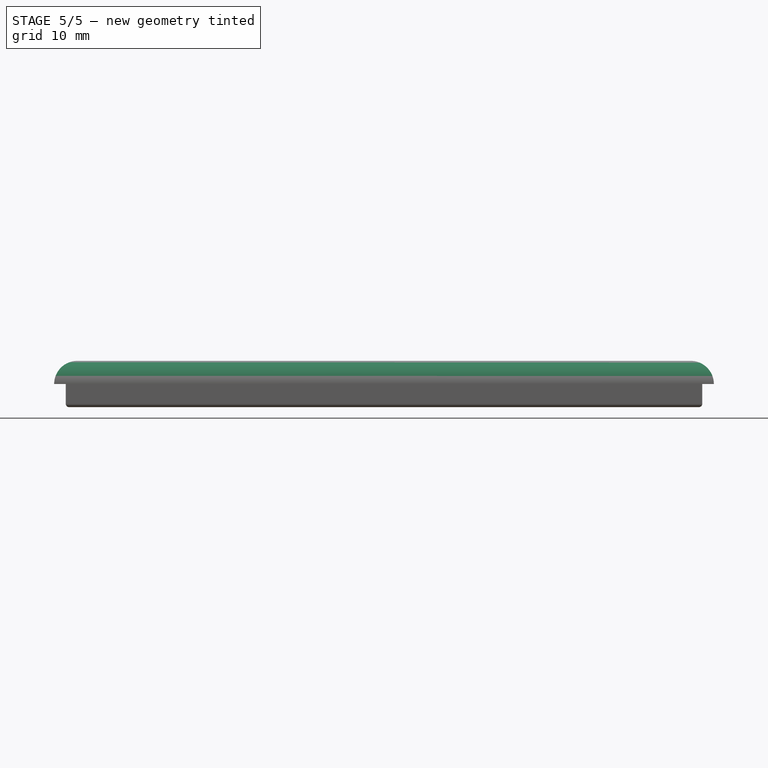
[diagram: stage 5 of 5 — front view after this stage's code; geometry added in this stage tinted green]
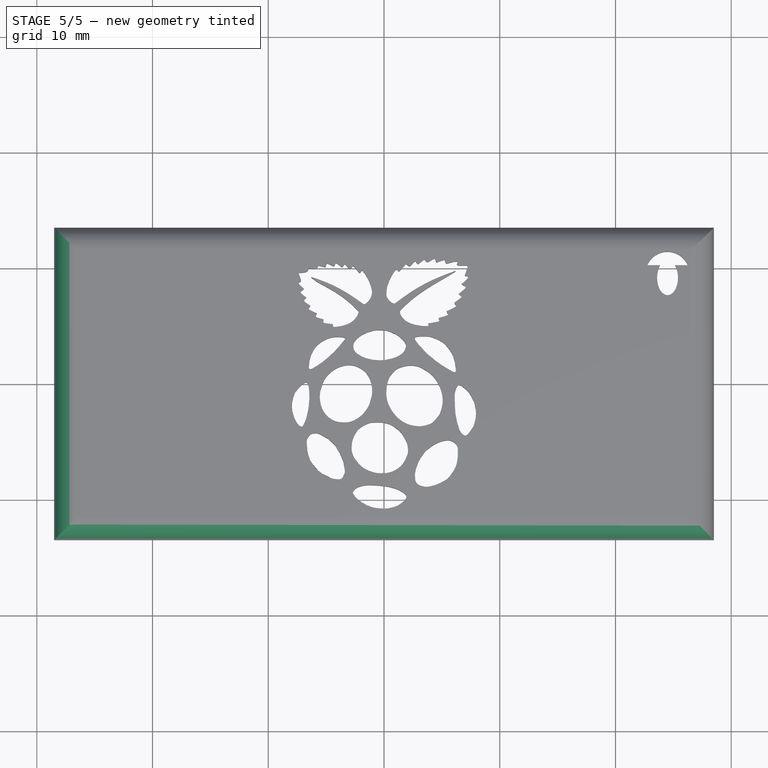
[diagram: stage 5 of 5 — top view after this stage's code; geometry added in this stage tinted green]
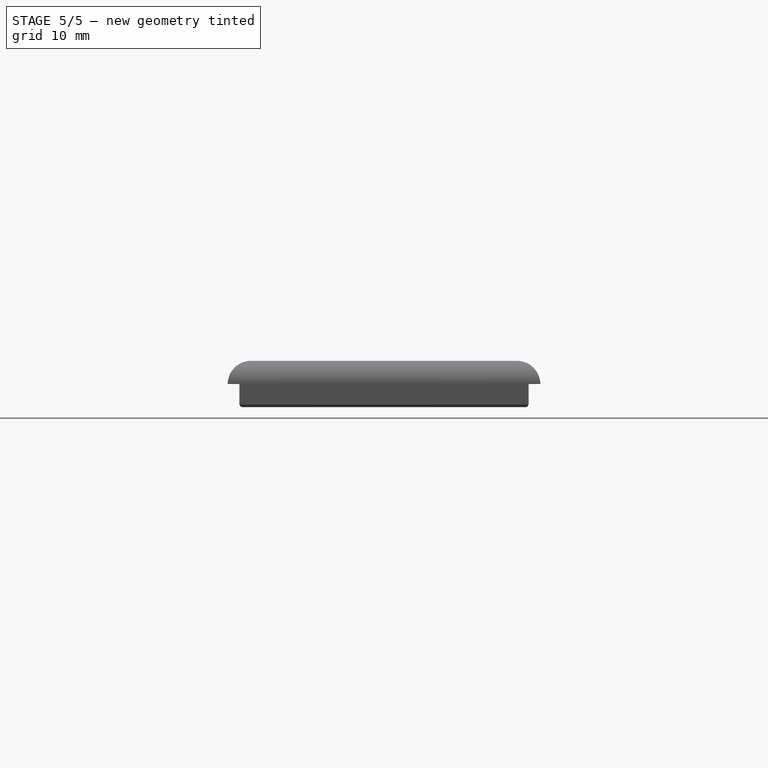
[diagram: stage 5 of 5 — right view after this stage's code; geometry added in this stage tinted green]
FEATURE [PartDesign::Pocket] Pocket020
  BaseFeature = -> Pocket019
  Direction = (1,0,0)
  Length = 57
  Length2 = 5
  Profile = -> Sketch016
  ReferenceAxis = -> Sketch016 [N_Axis]
  Type = 0
FEATURE [Sketcher::SketchObject] Sketch020
  AttachmentOffset = pos=(0,0,1) rot=(0,0,1;0rad)
  ExternalGeometry = -> [Pocket020]
  FullyConstrained = true
  MapMode = 5
  Placement = pos=(0,13.5,-2e-16) rot=(0,0.707107,0.707107;3.14159rad)
  Support = -> [Pocket020]
  sketch-geometry (3):
    g0: ArcOfCircle CenterX=26.5 CenterY=0 CenterZ=0 NormalX=0 NormalY=0 NormalZ=1 AngleXU=0 Radius=2 StartAngle=1e-16 EndAngle=1.5708
    g1: LineSegment StartX=26.5 StartY=2 StartZ=0 EndX=28.5 EndY=2 EndZ=0
    g2: LineSegment StartX=28.5 StartY=2 StartZ=0 EndX=28.5 EndY=2e-16 EndZ=0
  constraints (8):
    c: PointOnObject(g0,g-1)
    c: DistanceX(g0,g0) = 0
    c: DistanceY(g-3,g0) = 0
    c: Coincident(g-4,g0)
    c: Coincident(g1,g0)
    c: Coincident(g1,g-3)
    c: Coincident(g2,g1)
    c: Coincident(g2,g0)
FEATURE [PartDesign::Pocket] Pocket021
  BaseFeature = -> Pocket020
  Direction = (0,-1,2e-16)
  Length = 27
  Length2 = 5
  Profile = -> Sketch020
  ReferenceAxis = -> Sketch020 [N_Axis]
  Type = 0
FEATURE [Sketcher::SketchObject] Sketch021
  ExternalGeometry = -> [Pocket021]
  FullyConstrained = true
  MapMode = 5
  Placement = pos=(27.5,0,0) rot=(0.57735,0.57735,0.57735;2.0944rad)
  Support = -> [Pocket021]
  sketch-geometry (4):
    g0: LineSegment StartX=-4 StartY=-2 StartZ=0 EndX=4 EndY=-2 EndZ=0
    g1: LineSegment StartX=4 StartY=-2 StartZ=0 EndX=4 EndY=0 EndZ=0
    g2: LineSegment StartX=4 StartY=0 StartZ=0 EndX=-4 EndY=0 EndZ=0
    g3: LineSegment StartX=-4 StartY=0 StartZ=0 EndX=-4 EndY=-2 EndZ=0
  constraints (12):
    c: Coincident(g0,g1)
    c: Coincident(g1,g2)
    c: Coincident(g2,g3)
    c: Coincident(g3,g0)
    c: Horizontal(g0)
    c: Horizontal(g2)
    c: Vertical(g1)
    c: Vertical(g3)
    c: PointOnObject(g0,g-4)
    c: PointOnObject(g1,g-3)
    c: DistanceX(g0,g0) = 8
    c: DistanceX(g-4,g0) = 8.5
FEATURE [PartDesign::Pocket] Pocket022
  BaseFeature = -> Pocket021
  Direction = (-1,0,0)
  Length = 1
  Length2 = 5
  Profile = -> Sketch021
  ReferenceAxis = -> Sketch021 [N_Axis]
  Type = 0
FEATURE [PartDesign::Fillet] Fillet
  Base = -> Pocket022 [Face13]
  BaseFeature = -> Pocket022
  Radius = 0.3
  SupportTransform = false
  UseAllEdges = false
FEATURE [PartDesign::Body] Body
  Group = -> [Sketch,Pad,Sketch001,Pad001,Sketch002,Pocket,Sketch003,Pocket001,Sketch004,Pocket002,Sketch005,Pocket003,Sketch006,Pocket004,Sketch007,Pocket005,Sketch008,Pocket006,Sketch009,Pocket007,Sketch010,Pocket008,Sketch011,Pocket009,Sketch012,Pocket010,Sketch013,Pocket011,Sketch014,Pocket012,Sketch015,Sketch016,Sketch018,Sketch019,Pocket017,Pocket018,Pocket019,Pocket020,Sketch020,Pocket021,Sketch021,+2 more]
  Origin = -> Origin
  Tip = -> Fillet
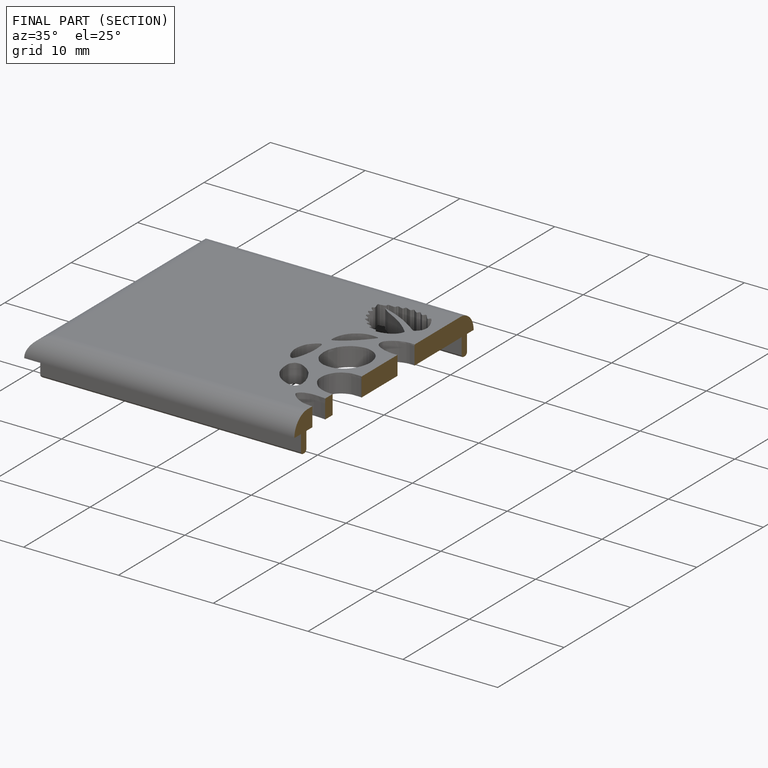
[diagram: finished part — half-section view (interior)]
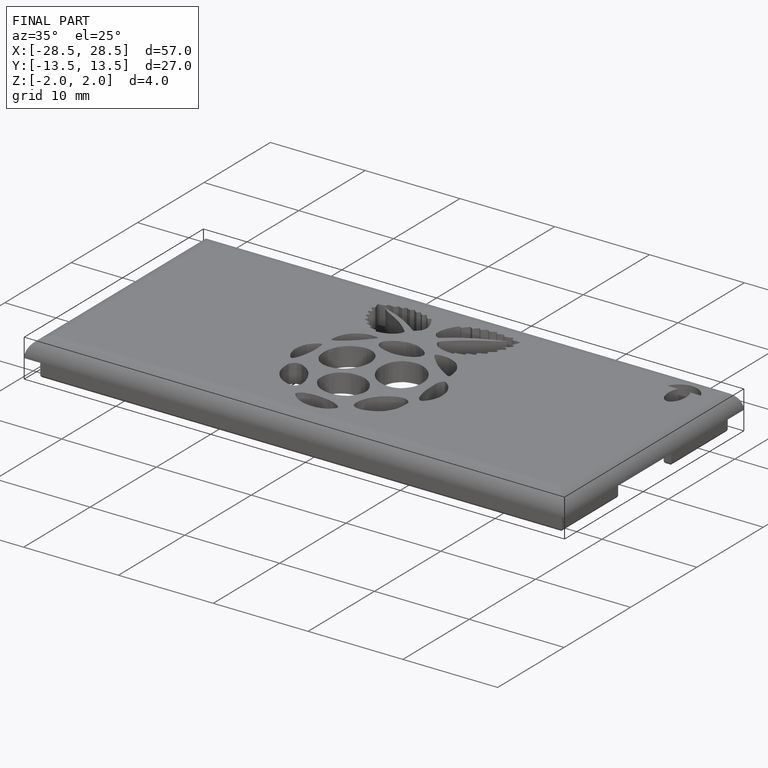
[diagram: finished part — iso view with bounding-box wireframe]
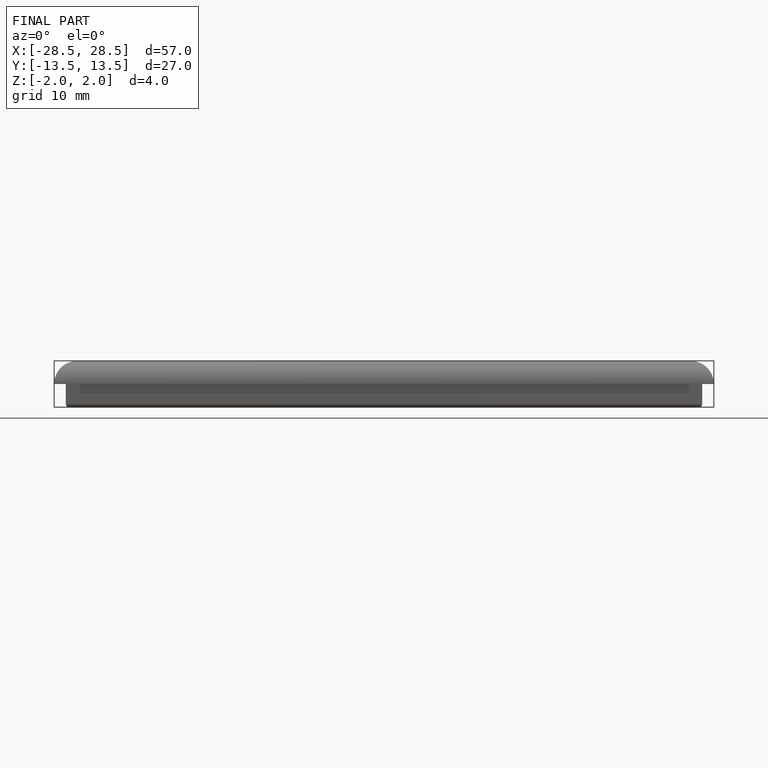
[diagram: finished part — front view with bounding-box wireframe]
